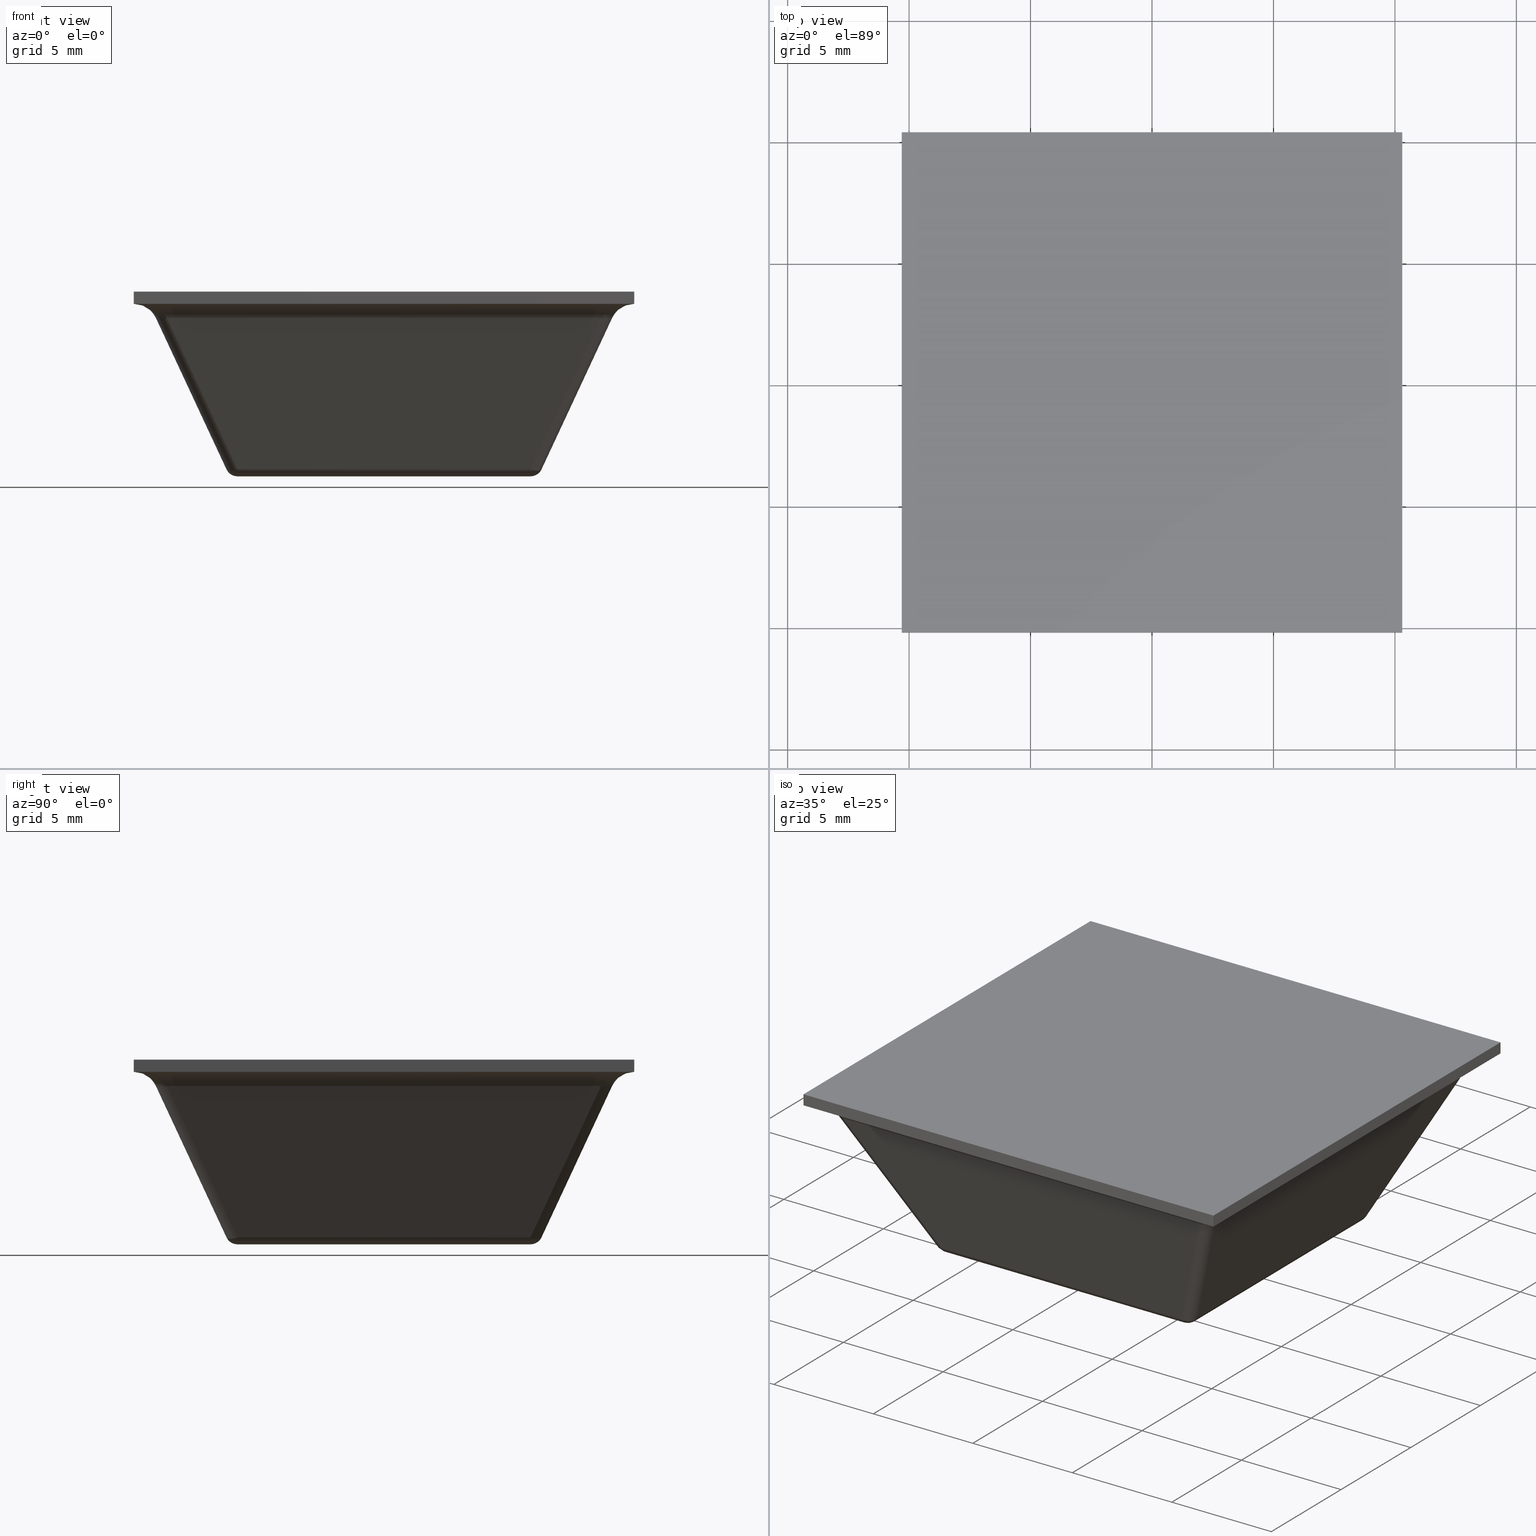
[diagram: canonical four-view strip — front | top / right | iso, engineering-drawing reading convention]
A machine part, canonical four-view strip (front | top / right | iso — engineering-drawing reading convention). The complete STEP part file that produces these views, byte-faithful:
ISO-10303-21;
HEADER;
/****************************************************************
 * Generated by software with PDE/Lib inside                    *
 * PDElib Version 4.4.1-0003, patched  Thursday August 19 11:58 *
 * International Technegroup Inc. (www.iti-oh.com)              *
 ****************************************************************/
FILE_DESCRIPTION((''),'2;1');
FILE_NAME('','2005-12-14T15:42:49',(''),(''),'','CADfix','');
FILE_SCHEMA(('AUTOMOTIVE_DESIGN'));
ENDSEC;
DATA;
#5=APPLICATION_CONTEXT('automotive design');
#6=APPLICATION_PROTOCOL_DEFINITION('Draft International Standard','automotive_design',1998,#5);
#7=PRODUCT_CONTEXT('None',#5,'mechanical');
#8=PRODUCT('rubber foot','','None',(#7));
#9=PRODUCT_RELATED_PRODUCT_CATEGORY('part','description',(#8));
#10=PRODUCT_DEFINITION_FORMATION('None','None',#8);
#11=PRODUCT_DEFINITION_CONTEXT('part definition',#5,'design');
#12=PRODUCT_DEFINITION('None','None',#10,#11);
#18=(NAMED_UNIT(*)PLANE_ANGLE_UNIT()SI_UNIT($,.RADIAN.));
#19=DIMENSIONAL_EXPONENTS(0.0,0.0,0.0,0.0,0.0,0.0,0.0);
#20=PLANE_ANGLE_MEASURE_WITH_UNIT(PLANE_ANGLE_MEASURE(0.017453292500000),#18);
#24=(CONVERSION_BASED_UNIT('DEGREE',#20)NAMED_UNIT(#19)PLANE_ANGLE_UNIT());
#28=(NAMED_UNIT(*)SI_UNIT($,.STERADIAN.)SOLID_ANGLE_UNIT());
#32=(LENGTH_UNIT()NAMED_UNIT(*)SI_UNIT(.MILLI.,.METRE.));
#34=UNCERTAINTY_MEASURE_WITH_UNIT(LENGTH_MEASURE(0.001000000000000),#32,'DISTANCE_ACCURACY_VALUE','');
#36=(GEOMETRIC_REPRESENTATION_CONTEXT(3)GLOBAL_UNCERTAINTY_ASSIGNED_CONTEXT((#34))GLOBAL_UNIT_ASSIGNED_CONTEXT((#24,#28,#32))REPRESENTATION_CONTEXT('None','None'));
#37=AXIS2_PLACEMENT_3D('',#38,#39,#40);
#38=CARTESIAN_POINT('',(0.0,0.0,0.0));
#39=DIRECTION('',(0.0,0.0,1.0));
#40=DIRECTION('',(1.0,0.0,0.0));
#41=ADVANCED_BREP_SHAPE_REPRESENTATION('',(#37,#1203),#36);
#42=PRODUCT_DEFINITION_SHAPE('','',#12);
#43=SHAPE_DEFINITION_REPRESENTATION(#42,#41);
#44=CARTESIAN_POINT('',(5.996269482723925,-6.005544566706119,0.001914263258448));
#45=CARTESIAN_POINT('',(6.092567517836257,-5.999565988669069,-0.004579188957124));
#46=CARTESIAN_POINT('',(6.390691726646398,-5.961825481680854,0.094552038508600));
#47=CARTESIAN_POINT('',(6.474167802716372,-5.923537855177108,0.294169996568950));
#48=CARTESIAN_POINT('',(6.002392777025314,-6.110580337493141,-0.003984500822956));
#49=CARTESIAN_POINT('',(6.103578696279659,-6.108630186754221,-0.011032979165015));
#50=CARTESIAN_POINT('',(6.416056060886284,-6.069072667391189,0.092870909862785));
#51=CARTESIAN_POINT('',(6.498408036753841,-6.010492529226550,0.300711534589791));
#52=CARTESIAN_POINT('',(6.002392777025314,-6.409194240097931,0.109701573345057));
#53=CARTESIAN_POINT('',(6.103578696279659,-6.419515116663930,0.107324829668182));
#54=CARTESIAN_POINT('',(6.416056060886284,-6.379957597300899,0.211228718695982));
#55=CARTESIAN_POINT('',(6.498408036753841,-6.266962309781905,0.398352810631311));
#56=CARTESIAN_POINT('',(5.980179272760333,-6.489791723331867,0.306851285621395));
#57=CARTESIAN_POINT('',(6.063822794760946,-6.501163698425042,0.311626657342303));
#58=CARTESIAN_POINT('',(6.324478035944461,-6.468166509130476,0.398298833704712));
#59=CARTESIAN_POINT('',(6.408996797294414,-6.357828846165383,0.530926460192636));
#67=(BOUNDED_SURFACE()B_SPLINE_SURFACE(2,2,((#44,#48,#52,#56),(#45,#49,#53,#57),(#46,#50,#54,#58),(#47,#51,#55,#59)),.UNSPECIFIED.,.F.,.F.,.U.)B_SPLINE_SURFACE_WITH_KNOTS((3,1,3),(3,1,3),(0.0,0.198291014408264,0.648858032309536),(0.0,0.214631105512660,0.650787210831185),.UNSPECIFIED.)GEOMETRIC_REPRESENTATION_ITEM()RATIONAL_B_SPLINE_SURFACE(((1.089238173844095,1.041093288684414,1.041093288684414,1.239908103179646),(1.048144885159681,1.0,1.0,1.198814814495232),(1.048144885159681,1.0,1.0,1.198814814495232),(1.260314713653803,1.212169828494122,1.212169828494122,1.410984642989354)))REPRESENTATION_ITEM('')SURFACE());
#68=CARTESIAN_POINT('',(6.484618936203209,-6.031465045455890,0.288690863187423));
#69=VERTEX_POINT('',#68);
#70=CARTESIAN_POINT('',(6.031465045455779,-6.484618936203209,0.288690863187423));
#71=VERTEX_POINT('',#70);
#72=CARTESIAN_POINT('',(6.484618936203209,-6.031465045455890,0.288690863187423));
#73=CARTESIAN_POINT('',(6.415947910680295,-6.415947910680401,0.141425378756760));
#74=CARTESIAN_POINT('',(6.031465045455779,-6.484618936203209,0.288690863187423));
#82=(BOUNDED_CURVE()B_SPLINE_CURVE(2,(#72,#73,#74),.UNSPECIFIED.,.F.,.U.)CURVE()GEOMETRIC_REPRESENTATION_ITEM()QUASI_UNIFORM_CURVE()RATIONAL_B_SPLINE_CURVE((1.0,0.767660799182123,1.0))REPRESENTATION_ITEM(''));
#83=EDGE_CURVE('',#69,#71,#82,.T.);
#84=ORIENTED_EDGE('',*,*,#83,.T.);
#85=CARTESIAN_POINT('',(6.031465045455790,-6.031465045455790,0.0));
#86=VERTEX_POINT('',#85);
#87=CARTESIAN_POINT('',(6.031465045455790,-6.031465045455790,0.0));
#88=CARTESIAN_POINT('',(6.031465045455790,-6.350000171250765,0.0));
#89=CARTESIAN_POINT('',(6.031465045455790,-6.484618936203209,0.288690863187423));
#97=(BOUNDED_CURVE()B_SPLINE_CURVE(2,(#87,#88,#89),.UNSPECIFIED.,.F.,.U.)CURVE()GEOMETRIC_REPRESENTATION_ITEM()QUASI_UNIFORM_CURVE()RATIONAL_B_SPLINE_CURVE((1.0,0.843391449335703,1.0))REPRESENTATION_ITEM(''));
#98=EDGE_CURVE('',#86,#71,#97,.T.);
#99=ORIENTED_EDGE('',*,*,#98,.F.);
#100=CARTESIAN_POINT('',(6.484618936203209,-6.031465045455890,0.288690863187423));
#101=CARTESIAN_POINT('',(6.350000171250765,-6.031465045455789,0.0));
#102=CARTESIAN_POINT('',(6.031465045455790,-6.031465045455790,0.0));
#110=(BOUNDED_CURVE()B_SPLINE_CURVE(2,(#100,#101,#102),.UNSPECIFIED.,.F.,.U.)CURVE()GEOMETRIC_REPRESENTATION_ITEM()QUASI_UNIFORM_CURVE()RATIONAL_B_SPLINE_CURVE((1.0,0.843391449335702,1.0))REPRESENTATION_ITEM(''));
#111=EDGE_CURVE('',#69,#86,#110,.T.);
#112=ORIENTED_EDGE('',*,*,#111,.F.);
#113=EDGE_LOOP('',(#84,#99,#112));
#114=FACE_OUTER_BOUND('',#113,.T.);
#115=ADVANCED_FACE('',(#114),#67,.T.);
#116=CARTESIAN_POINT('',(8.996691627693897,-9.466566985900785,6.684075282392934));
#117=CARTESIAN_POINT('',(5.942600196614458,-6.412475554821345,0.134555296801747));
#118=CARTESIAN_POINT('',(9.419675014113302,-9.404015585474179,6.516003081326400));
#119=CARTESIAN_POINT('',(6.365583583033866,-6.349924154394739,-0.033516904264785));
#120=CARTESIAN_POINT('',(9.468544639873960,-8.981687881144465,6.690149449325031));
#121=CARTESIAN_POINT('',(6.414453208794523,-5.927596450065025,0.140629463733846));
#129=(BOUNDED_SURFACE()B_SPLINE_SURFACE(1,2,((#116,#118,#120),(#117,#119,#121)),.UNSPECIFIED.,.F.,.F.,.U.)B_SPLINE_SURFACE_WITH_KNOTS((2,2),(3,3),(0.0,7.845454797552791),(0.0,0.989248217878956),.UNSPECIFIED.)GEOMETRIC_REPRESENTATION_ITEM()RATIONAL_B_SPLINE_SURFACE(((1.0,0.734242128086986,0.994285258528478),(1.0,0.734242128086986,0.994285258528478)))REPRESENTATION_ITEM('')SURFACE());
#130=CARTESIAN_POINT('',(9.391547127593508,-8.938393236846100,6.522618273625180));
#131=VERTEX_POINT('',#130);
#132=CARTESIAN_POINT('',(8.938393236846089,-9.391547127593508,6.522618273625180));
#133=VERTEX_POINT('',#132);
#134=CARTESIAN_POINT('',(9.391547127593514,-8.938393236846105,6.522618273625193));
#135=CARTESIAN_POINT('',(9.322876102070595,-9.322876102070593,6.375352789194563));
#136=CARTESIAN_POINT('',(8.938393236846100,-9.391547127593505,6.522618273625175));
#144=(BOUNDED_CURVE()B_SPLINE_CURVE(2,(#134,#135,#136),.UNSPECIFIED.,.F.,.U.)CURVE()GEOMETRIC_REPRESENTATION_ITEM()QUASI_UNIFORM_CURVE()RATIONAL_B_SPLINE_CURVE((1.0,0.767660799182148,1.0))REPRESENTATION_ITEM(''));
#145=EDGE_CURVE('',#131,#133,#144,.T.);
#146=ORIENTED_EDGE('',*,*,#145,.T.);
#147=CARTESIAN_POINT('',(6.031465045455779,-6.484618936203209,0.288690863187423));
#148=CARTESIAN_POINT('',(8.938393236846089,-9.391547127593508,6.522618273625180));
#149=QUASI_UNIFORM_CURVE('',1,(#147,#148),.UNSPECIFIED.,.F.,.U.);
#150=EDGE_CURVE('',#71,#133,#149,.T.);
#151=ORIENTED_EDGE('',*,*,#150,.F.);
#152=ORIENTED_EDGE('',*,*,#83,.F.);
#153=CARTESIAN_POINT('',(9.391547127593508,-8.938393236846100,6.522618273625180));
#154=CARTESIAN_POINT('',(6.484618936203209,-6.031465045455890,0.288690863187423));
#155=QUASI_UNIFORM_CURVE('',1,(#153,#154),.UNSPECIFIED.,.F.,.U.);
#156=EDGE_CURVE('',#131,#69,#155,.T.);
#157=ORIENTED_EDGE('',*,*,#156,.F.);
#158=EDGE_LOOP('',(#146,#151,#152,#157));
#159=FACE_OUTER_BOUND('',#158,.T.);
#160=ADVANCED_FACE('',(#159),#129,.T.);
#161=CARTESIAN_POINT('',(9.391547127593498,-8.938393236846085,6.522618273625191));
#162=CARTESIAN_POINT('',(9.431494190975366,-8.998313831926295,6.608285024568768));
#163=CARTESIAN_POINT('',(9.483681436343781,-9.076594699971480,6.688267893788268));
#164=CARTESIAN_POINT('',(9.608348779843993,-9.263595715221854,6.830423751200287));
#165=CARTESIAN_POINT('',(9.680822206576167,-9.372305855320173,6.892595863452938));
#166=CARTESIAN_POINT('',(9.920021505661367,-9.731104803947702,7.044982621101283));
#167=CARTESIAN_POINT('',(10.108630607140890,-10.014018456166649,7.100000000000000));
#168=CARTESIAN_POINT('',(10.297854909088320,-10.297854909088320,7.100000000000002));
#169=CARTESIAN_POINT('',(9.322876102070586,-9.322876102070586,6.375352789194572));
#170=CARTESIAN_POINT('',(9.342173457417509,-9.342173457417509,6.452974475952404));
#171=CARTESIAN_POINT('',(9.377447899508841,-9.377447899508841,6.542361407575299));
#172=CARTESIAN_POINT('',(9.486768763177249,-9.486768763177249,6.716558671589717));
#173=CARTESIAN_POINT('',(9.560446616874357,-9.560446616874357,6.801067011559352));
#174=CARTESIAN_POINT('',(9.825778169636791,-9.825778169636791,7.014625284663367));
#175=CARTESIAN_POINT('',(10.061203890053322,-10.061203890053322,7.099999999995125));
#176=CARTESIAN_POINT('',(10.297854909088320,-10.297854909088320,7.100000000000002));
#177=CARTESIAN_POINT('',(8.938393236846085,-9.391547127593498,6.522618273625191));
#178=CARTESIAN_POINT('',(8.998313831926295,-9.431494190975366,6.608285024568768));
#179=CARTESIAN_POINT('',(9.076594699971480,-9.483681436343781,6.688267893788268));
#180=CARTESIAN_POINT('',(9.263595715221854,-9.608348779843993,6.830423751200287));
#181=CARTESIAN_POINT('',(9.372305855320173,-9.680822206576167,6.892595863452938));
#182=CARTESIAN_POINT('',(9.731104803947702,-9.920021505661367,7.044982621101283));
#183=CARTESIAN_POINT('',(10.014018456166649,-10.108630607140899,7.100000000000000));
#184=CARTESIAN_POINT('',(10.297854909088320,-10.297854909088320,7.100000000000002));
#192=(BOUNDED_SURFACE()B_SPLINE_SURFACE(3,2,((#161,#169,#177),(#162,#170,#178),(#163,#171,#179),(#164,#172,#180),(#165,#173,#181),(#166,#174,#182),(#167,#175,#183),(#168,#176,#184)),.UNSPECIFIED.,.F.,.F.,.U.)B_SPLINE_SURFACE_WITH_KNOTS((4,2,2,4),(3,3),(6.719517633291250,7.003133633462058,7.286749633632867,7.853981633974483),(0.0,1.0),.UNSPECIFIED.)GEOMETRIC_REPRESENTATION_ITEM()RATIONAL_B_SPLINE_SURFACE(((1.0,0.767660799182144,1.0),(1.0,0.791268644861793,1.0),(1.0,0.819310037563901,1.0),(1.0,0.874642094959707,1.0),(1.0,0.901859323982885,1.0),(1.0,0.971329300386949,1.0),(1.0,1.000705924827623,1.0),(1.0,1.0,1.0)))REPRESENTATION_ITEM('')SURFACE());
#193=CARTESIAN_POINT('',(10.297854909088340,-10.297854909088340,7.100000000000001));
#194=VERTEX_POINT('',#193);
#195=CARTESIAN_POINT('',(10.297854909088329,-10.297854909088340,7.100000000000001));
#196=CARTESIAN_POINT('',(9.660784657498398,-9.342249531703446,7.100000000000001));
#197=CARTESIAN_POINT('',(9.391547127593499,-8.938393236846105,6.522618273625191));
#205=(BOUNDED_CURVE()B_SPLINE_CURVE(2,(#195,#196,#197),.UNSPECIFIED.,.F.,.U.)CURVE()GEOMETRIC_REPRESENTATION_ITEM()QUASI_UNIFORM_CURVE()RATIONAL_B_SPLINE_CURVE((1.0,0.843391449335735,1.0))REPRESENTATION_ITEM(''));
#206=EDGE_CURVE('',#194,#131,#205,.T.);
#207=ORIENTED_EDGE('',*,*,#206,.F.);
#208=CARTESIAN_POINT('',(8.938393236846093,-9.391547127593501,6.522618273625196));
#209=CARTESIAN_POINT('',(9.342249531703443,-9.660784657498404,7.100000000000001));
#210=CARTESIAN_POINT('',(10.297854909088340,-10.297854909088329,7.100000000000001));
#218=(BOUNDED_CURVE()B_SPLINE_CURVE(2,(#208,#209,#210),.UNSPECIFIED.,.F.,.U.)CURVE()GEOMETRIC_REPRESENTATION_ITEM()QUASI_UNIFORM_CURVE()RATIONAL_B_SPLINE_CURVE((1.0,0.843391449335736,1.0))REPRESENTATION_ITEM(''));
#219=EDGE_CURVE('',#133,#194,#218,.T.);
#220=ORIENTED_EDGE('',*,*,#219,.F.);
#221=ORIENTED_EDGE('',*,*,#145,.F.);
#222=EDGE_LOOP('',(#207,#220,#221));
#223=FACE_OUTER_BOUND('',#222,.T.);
#224=ADVANCED_FACE('',(#223),#192,.T.);
#225=CARTESIAN_POINT('',(5.979771742497417,6.489611345427118,0.306532250098791));
#226=CARTESIAN_POINT('',(6.104913527955021,6.508496046489298,0.317815596756849));
#227=CARTESIAN_POINT('',(6.363223597986297,6.437328158908335,0.441391629772017));
#228=CARTESIAN_POINT('',(6.428552450550005,6.330570420988108,0.553456216132630));
#229=CARTESIAN_POINT('',(6.003209976368464,6.426844761680123,0.151633679948807));
#230=CARTESIAN_POINT('',(6.147018930141467,6.443043986980738,0.151569872509884));
#231=CARTESIAN_POINT('',(6.439845641629646,6.362366301897187,0.291658733010772));
#232=CARTESIAN_POINT('',(6.503090066652169,6.252648116982631,0.435771706955867));
#233=CARTESIAN_POINT('',(6.003209976368464,6.154703677114867,-0.005093362018334));
#234=CARTESIAN_POINT('',(6.147018930141467,6.148318164801390,-0.018163802121765));
#235=CARTESIAN_POINT('',(6.439845641629646,6.067640479717839,0.121925058379124));
#236=CARTESIAN_POINT('',(6.503090066652169,5.995263839206325,0.287543163775146));
#237=CARTESIAN_POINT('',(5.985333849786838,6.010734180685159,0.002564432280909));
#238=CARTESIAN_POINT('',(6.114836541181076,5.994052511955813,-0.008750175967944));
#239=CARTESIAN_POINT('',(6.381281175232886,5.920643442923182,0.118717448079055));
#240=CARTESIAN_POINT('',(6.446321622570888,5.871169255353566,0.271528382288195));
#248=(BOUNDED_SURFACE()B_SPLINE_SURFACE(2,2,((#225,#229,#233,#237),(#226,#230,#234,#238),(#227,#231,#235,#239),(#228,#232,#236,#240)),.UNSPECIFIED.,.F.,.F.,.U.)B_SPLINE_SURFACE_WITH_KNOTS((3,1,3),(3,1,3),(0.0,0.275540843955162,0.639858857975324),(0.0,0.349638390442770,0.650610686480386),.UNSPECIFIED.)GEOMETRIC_REPRESENTATION_ITEM()RATIONAL_B_SPLINE_SURFACE(((1.216613916462104,1.082989077706410,1.082989077706410,1.182004310384124),(1.133624838755694,1.0,1.0,1.099015232677714),(1.133624838755694,1.0,1.0,1.099015232677714),(1.278705745505941,1.145080906750247,1.145080906750247,1.244096139427961)))REPRESENTATION_ITEM('')SURFACE());
#249=CARTESIAN_POINT('',(6.031465045455790,6.031465045455790,0.0));
#250=VERTEX_POINT('',#249);
#251=CARTESIAN_POINT('',(6.484618936203209,6.031465045455779,0.288690863187423));
#252=VERTEX_POINT('',#251);
#253=CARTESIAN_POINT('',(6.031465045455790,6.031465045455790,0.0));
#254=CARTESIAN_POINT('',(6.350000171250765,6.031465045455789,0.0));
#255=CARTESIAN_POINT('',(6.484618936203209,6.031465045455790,0.288690863187423));
#263=(BOUNDED_CURVE()B_SPLINE_CURVE(2,(#253,#254,#255),.UNSPECIFIED.,.F.,.U.)CURVE()GEOMETRIC_REPRESENTATION_ITEM()QUASI_UNIFORM_CURVE()RATIONAL_B_SPLINE_CURVE((1.0,0.843391449335702,1.0))REPRESENTATION_ITEM(''));
#264=EDGE_CURVE('',#250,#252,#263,.T.);
#265=ORIENTED_EDGE('',*,*,#264,.F.);
#266=CARTESIAN_POINT('',(6.031465045455890,6.484618936203209,0.288690863187423));
#267=VERTEX_POINT('',#266);
#268=CARTESIAN_POINT('',(6.031465045455890,6.484618936203209,0.288690863187423));
#269=CARTESIAN_POINT('',(6.031465045455789,6.350000171250765,0.0));
#270=CARTESIAN_POINT('',(6.031465045455790,6.031465045455790,0.0));
#278=(BOUNDED_CURVE()B_SPLINE_CURVE(2,(#268,#269,#270),.UNSPECIFIED.,.F.,.U.)CURVE()GEOMETRIC_REPRESENTATION_ITEM()QUASI_UNIFORM_CURVE()RATIONAL_B_SPLINE_CURVE((1.0,0.843391449335702,1.0))REPRESENTATION_ITEM(''));
#279=EDGE_CURVE('',#267,#250,#278,.T.);
#280=ORIENTED_EDGE('',*,*,#279,.F.);
#281=CARTESIAN_POINT('',(6.031465045455890,6.484618936203209,0.288690863187423));
#282=CARTESIAN_POINT('',(6.415947910680401,6.415947910680295,0.141425378756760));
#283=CARTESIAN_POINT('',(6.484618936203209,6.031465045455779,0.288690863187423));
#291=(BOUNDED_CURVE()B_SPLINE_CURVE(2,(#281,#282,#283),.UNSPECIFIED.,.F.,.U.)CURVE()GEOMETRIC_REPRESENTATION_ITEM()QUASI_UNIFORM_CURVE()RATIONAL_B_SPLINE_CURVE((1.0,0.767660799182123,1.0))REPRESENTATION_ITEM(''));
#292=EDGE_CURVE('',#267,#252,#291,.T.);
#293=ORIENTED_EDGE('',*,*,#292,.T.);
#294=EDGE_LOOP('',(#265,#280,#293));
#295=FACE_OUTER_BOUND('',#294,.T.);
#296=ADVANCED_FACE('',(#295),#248,.T.);
#297=CARTESIAN_POINT('',(9.466566985900785,8.996691627693897,6.684075282392934));
#298=CARTESIAN_POINT('',(6.412475554821346,5.942600196614457,0.134555296801747));
#299=CARTESIAN_POINT('',(9.404015585474177,9.419675014113311,6.516003081326400));
#300=CARTESIAN_POINT('',(6.349924154394739,6.365583583033868,-0.033516904264786));
#301=CARTESIAN_POINT('',(8.981687881144458,9.468544639873970,6.690149449325035));
#302=CARTESIAN_POINT('',(5.927596450065020,6.414453208794525,0.140629463733846));
#310=(BOUNDED_SURFACE()B_SPLINE_SURFACE(1,2,((#297,#299,#301),(#298,#300,#302)),.UNSPECIFIED.,.F.,.F.,.U.)B_SPLINE_SURFACE_WITH_KNOTS((2,2),(3,3),(0.0,7.845454797552792),(0.0,0.989248217878956),.UNSPECIFIED.)GEOMETRIC_REPRESENTATION_ITEM()RATIONAL_B_SPLINE_SURFACE(((1.0,0.734242128086986,0.994285258528478),(1.0,0.734242128086986,0.994285258528478)))REPRESENTATION_ITEM('')SURFACE());
#311=CARTESIAN_POINT('',(8.938393236846100,9.391547127593508,6.522618273625180));
#312=VERTEX_POINT('',#311);
#313=CARTESIAN_POINT('',(9.391547127593508,8.938393236846089,6.522618273625180));
#314=VERTEX_POINT('',#313);
#315=CARTESIAN_POINT('',(8.938393236846105,9.391547127593514,6.522618273625193));
#316=CARTESIAN_POINT('',(9.322876102070593,9.322876102070595,6.375352789194563));
#317=CARTESIAN_POINT('',(9.391547127593505,8.938393236846100,6.522618273625175));
#325=(BOUNDED_CURVE()B_SPLINE_CURVE(2,(#315,#316,#317),.UNSPECIFIED.,.F.,.U.)CURVE()GEOMETRIC_REPRESENTATION_ITEM()QUASI_UNIFORM_CURVE()RATIONAL_B_SPLINE_CURVE((1.0,0.767660799182148,1.0))REPRESENTATION_ITEM(''));
#326=EDGE_CURVE('',#312,#314,#325,.T.);
#327=ORIENTED_EDGE('',*,*,#326,.T.);
#328=CARTESIAN_POINT('',(6.484618936203209,6.031465045455779,0.288690863187423));
#329=CARTESIAN_POINT('',(9.391547127593508,8.938393236846089,6.522618273625180));
#330=QUASI_UNIFORM_CURVE('',1,(#328,#329),.UNSPECIFIED.,.F.,.U.);
#331=EDGE_CURVE('',#252,#314,#330,.T.);
#332=ORIENTED_EDGE('',*,*,#331,.F.);
#333=ORIENTED_EDGE('',*,*,#292,.F.);
#334=CARTESIAN_POINT('',(8.938393236846100,9.391547127593508,6.522618273625180));
#335=CARTESIAN_POINT('',(6.031465045455890,6.484618936203209,0.288690863187423));
#336=QUASI_UNIFORM_CURVE('',1,(#334,#335),.UNSPECIFIED.,.F.,.U.);
#337=EDGE_CURVE('',#312,#267,#336,.T.);
#338=ORIENTED_EDGE('',*,*,#337,.F.);
#339=EDGE_LOOP('',(#327,#332,#333,#338));
#340=FACE_OUTER_BOUND('',#339,.T.);
#341=ADVANCED_FACE('',(#340),#310,.T.);
#342=CARTESIAN_POINT('',(8.938393236846085,9.391547127593498,6.522618273625191));
#343=CARTESIAN_POINT('',(8.998313831926295,9.431494190975366,6.608285024568768));
#344=CARTESIAN_POINT('',(9.076594699971480,9.483681436343781,6.688267893788268));
#345=CARTESIAN_POINT('',(9.263595715221854,9.608348779843993,6.830423751200287));
#346=CARTESIAN_POINT('',(9.372305855320173,9.680822206576167,6.892595863452938));
#347=CARTESIAN_POINT('',(9.731104803947702,9.920021505661367,7.044982621101283));
#348=CARTESIAN_POINT('',(10.014018456166649,10.108630607140899,7.100000000000000));
#349=CARTESIAN_POINT('',(10.297854909088320,10.297854909088320,7.100000000000002));
#350=CARTESIAN_POINT('',(9.322876102070586,9.322876102070586,6.375352789194572));
#351=CARTESIAN_POINT('',(9.342173457417509,9.342173457417509,6.452974475952404));
#352=CARTESIAN_POINT('',(9.377447899508841,9.377447899508841,6.542361407575299));
#353=CARTESIAN_POINT('',(9.486768763177249,9.486768763177249,6.716558671589717));
#354=CARTESIAN_POINT('',(9.560446616874357,9.560446616874357,6.801067011559352));
#355=CARTESIAN_POINT('',(9.825778169636791,9.825778169636791,7.014625284663367));
#356=CARTESIAN_POINT('',(10.061203890053322,10.061203890053322,7.099999999995125));
#357=CARTESIAN_POINT('',(10.297854909088320,10.297854909088320,7.100000000000002));
#358=CARTESIAN_POINT('',(9.391547127593498,8.938393236846085,6.522618273625191));
#359=CARTESIAN_POINT('',(9.431494190975366,8.998313831926295,6.608285024568768));
#360=CARTESIAN_POINT('',(9.483681436343781,9.076594699971480,6.688267893788268));
#361=CARTESIAN_POINT('',(9.608348779843993,9.263595715221854,6.830423751200287));
#362=CARTESIAN_POINT('',(9.680822206576167,9.372305855320173,6.892595863452938));
#363=CARTESIAN_POINT('',(9.920021505661367,9.731104803947702,7.044982621101283));
#364=CARTESIAN_POINT('',(10.108630607140890,10.014018456166649,7.100000000000000));
#365=CARTESIAN_POINT('',(10.297854909088320,10.297854909088320,7.100000000000002));
#373=(BOUNDED_SURFACE()B_SPLINE_SURFACE(3,2,((#342,#350,#358),(#343,#351,#359),(#344,#352,#360),(#345,#353,#361),(#346,#354,#362),(#347,#355,#363),(#348,#356,#364),(#349,#357,#365)),.UNSPECIFIED.,.F.,.F.,.U.)B_SPLINE_SURFACE_WITH_KNOTS((4,2,2,4),(3,3),(6.719517633291250,7.003133633462058,7.286749633632867,7.853981633974483),(0.0,1.0),.UNSPECIFIED.)GEOMETRIC_REPRESENTATION_ITEM()RATIONAL_B_SPLINE_SURFACE(((1.0,0.767660799182144,1.0),(1.0,0.791268644861793,1.0),(1.0,0.819310037563901,1.0),(1.0,0.874642094959707,1.0),(1.0,0.901859323982885,1.0),(1.0,0.971329300386949,1.0),(1.0,1.000705924827623,1.0),(1.0,1.0,1.0)))REPRESENTATION_ITEM('')SURFACE());
#374=CARTESIAN_POINT('',(10.297854909088340,10.297854909088340,7.100000000000001));
#375=VERTEX_POINT('',#374);
#376=CARTESIAN_POINT('',(10.297854909088340,10.297854909088329,7.100000000000001));
#377=CARTESIAN_POINT('',(9.342249531703446,9.660784657498398,7.100000000000001));
#378=CARTESIAN_POINT('',(8.938393236846105,9.391547127593499,6.522618273625191));
#386=(BOUNDED_CURVE()B_SPLINE_CURVE(2,(#376,#377,#378),.UNSPECIFIED.,.F.,.U.)CURVE()GEOMETRIC_REPRESENTATION_ITEM()QUASI_UNIFORM_CURVE()RATIONAL_B_SPLINE_CURVE((1.0,0.843391449335735,1.0))REPRESENTATION_ITEM(''));
#387=EDGE_CURVE('',#375,#312,#386,.T.);
#388=ORIENTED_EDGE('',*,*,#387,.F.);
#389=CARTESIAN_POINT('',(9.391547127593501,8.938393236846093,6.522618273625196));
#390=CARTESIAN_POINT('',(9.660784657498404,9.342249531703443,7.100000000000001));
#391=CARTESIAN_POINT('',(10.297854909088329,10.297854909088340,7.100000000000001));
#399=(BOUNDED_CURVE()B_SPLINE_CURVE(2,(#389,#390,#391),.UNSPECIFIED.,.F.,.U.)CURVE()GEOMETRIC_REPRESENTATION_ITEM()QUASI_UNIFORM_CURVE()RATIONAL_B_SPLINE_CURVE((1.0,0.843391449335736,1.0))REPRESENTATION_ITEM(''));
#400=EDGE_CURVE('',#314,#375,#399,.T.);
#401=ORIENTED_EDGE('',*,*,#400,.F.);
#402=ORIENTED_EDGE('',*,*,#326,.F.);
#403=EDGE_LOOP('',(#388,#401,#402));
#404=FACE_OUTER_BOUND('',#403,.T.);
#405=ADVANCED_FACE('',(#404),#373,.T.);
#406=CARTESIAN_POINT('',(-9.391547127593492,8.938393236846080,6.522618273625186));
#407=CARTESIAN_POINT('',(-9.431494190975297,8.998313831926595,6.608285024568628));
#408=CARTESIAN_POINT('',(-9.483681436343741,9.076594699971473,6.688267893788221));
#409=CARTESIAN_POINT('',(-9.608348779844025,9.263595715221847,6.830423751200326));
#410=CARTESIAN_POINT('',(-9.680822206576162,9.372305855320164,6.892595863452933));
#411=CARTESIAN_POINT('',(-9.920021505661364,9.731104803947694,7.044982621101281));
#412=CARTESIAN_POINT('',(-10.108630607140579,10.014018456166870,7.100000000000000));
#413=CARTESIAN_POINT('',(-10.297854909088329,10.297854909088320,7.100000000000002));
#414=CARTESIAN_POINT('',(-9.322876102070582,9.322876102070582,6.375352789194564));
#415=CARTESIAN_POINT('',(-9.342173457418479,9.342173457418479,6.452974475952030));
#416=CARTESIAN_POINT('',(-9.377447899508688,9.377447899508688,6.542361407575219));
#417=CARTESIAN_POINT('',(-9.486768763177389,9.486768763177389,6.716558671589787));
#418=CARTESIAN_POINT('',(-9.560446616874192,9.560446616874192,6.801067011559588));
#419=CARTESIAN_POINT('',(-9.825778169637108,9.825778169637108,7.014625284662880));
#420=CARTESIAN_POINT('',(-10.061203890053076,10.061203890053076,7.099999999995125));
#421=CARTESIAN_POINT('',(-10.297854909088320,10.297854909088320,7.100000000000002));
#422=CARTESIAN_POINT('',(-8.938393236846080,9.391547127593492,6.522618273625186));
#423=CARTESIAN_POINT('',(-8.998313831926598,9.431494190975300,6.608285024568635));
#424=CARTESIAN_POINT('',(-9.076594699971473,9.483681436343741,6.688267893788221));
#425=CARTESIAN_POINT('',(-9.263595715221847,9.608348779844025,6.830423751200326));
#426=CARTESIAN_POINT('',(-9.372305855320164,9.680822206576162,6.892595863452933));
#427=CARTESIAN_POINT('',(-9.731104803947694,9.920021505661364,7.044982621101281));
#428=CARTESIAN_POINT('',(-10.014018456166861,10.108630607140570,7.100000000000000));
#429=CARTESIAN_POINT('',(-10.297854909088320,10.297854909088329,7.100000000000002));
#437=(BOUNDED_SURFACE()B_SPLINE_SURFACE(3,2,((#406,#414,#422),(#407,#415,#423),(#408,#416,#424),(#409,#417,#425),(#410,#418,#426),(#411,#419,#427),(#412,#420,#428),(#413,#421,#429)),.UNSPECIFIED.,.F.,.F.,.U.)B_SPLINE_SURFACE_WITH_KNOTS((4,2,2,4),(3,3),(3.577924979701451,3.861540979872261,4.145156980043071,4.712388980384690),(0.0,1.0),.UNSPECIFIED.)GEOMETRIC_REPRESENTATION_ITEM()RATIONAL_B_SPLINE_SURFACE(((1.0,0.767660799182140,1.0),(1.0,0.791268644861786,1.0),(1.0,0.819310037563909,1.0),(1.0,0.874642094959696,1.0),(1.0,0.901859323982863,1.0),(1.0,0.971329300386989,1.0),(1.0,1.000705924827593,1.0),(1.0,1.0,1.0)))REPRESENTATION_ITEM('')SURFACE());
#438=CARTESIAN_POINT('',(-8.938393236846070,9.391547127593508,6.522618273625180));
#439=VERTEX_POINT('',#438);
#440=CARTESIAN_POINT('',(-9.391547127593508,8.938393236846411,6.522618273625180));
#441=VERTEX_POINT('',#440);
#442=CARTESIAN_POINT('',(-8.938393236846070,9.391547127593507,6.522618273625183));
#443=CARTESIAN_POINT('',(-9.322876102070540,9.322876102070831,6.375352789195053));
#444=CARTESIAN_POINT('',(-9.391547127593508,8.938393236846411,6.522618273625180));
#452=(BOUNDED_CURVE()B_SPLINE_CURVE(2,(#442,#443,#444),.UNSPECIFIED.,.F.,.U.)CURVE()GEOMETRIC_REPRESENTATION_ITEM()QUASI_UNIFORM_CURVE()RATIONAL_B_SPLINE_CURVE((1.0,0.767660799182322,1.0))REPRESENTATION_ITEM(''));
#453=EDGE_CURVE('',#439,#441,#452,.T.);
#454=ORIENTED_EDGE('',*,*,#453,.T.);
#455=CARTESIAN_POINT('',(-10.297854909088340,10.297854909088340,7.100000000000001));
#456=VERTEX_POINT('',#455);
#457=CARTESIAN_POINT('',(-10.297854909088329,10.297854909088340,7.100000000000001));
#458=CARTESIAN_POINT('',(-9.660784657498638,9.342249531703805,7.100000000000001));
#459=CARTESIAN_POINT('',(-9.391547127593508,8.938393236846411,6.522618273625180));
#467=(BOUNDED_CURVE()B_SPLINE_CURVE(2,(#457,#458,#459),.UNSPECIFIED.,.F.,.U.)CURVE()GEOMETRIC_REPRESENTATION_ITEM()QUASI_UNIFORM_CURVE()RATIONAL_B_SPLINE_CURVE((1.0,0.843391449335826,1.0))REPRESENTATION_ITEM(''));
#468=EDGE_CURVE('',#456,#441,#467,.T.);
#469=ORIENTED_EDGE('',*,*,#468,.F.);
#470=CARTESIAN_POINT('',(-8.938393236846080,9.391547127593494,6.522618273625180));
#471=CARTESIAN_POINT('',(-9.342249531703425,9.660784657498391,7.100000000000001));
#472=CARTESIAN_POINT('',(-10.297854909088340,10.297854909088329,7.100000000000001));
#480=(BOUNDED_CURVE()B_SPLINE_CURVE(2,(#470,#471,#472),.UNSPECIFIED.,.F.,.U.)CURVE()GEOMETRIC_REPRESENTATION_ITEM()QUASI_UNIFORM_CURVE()RATIONAL_B_SPLINE_CURVE((1.0,0.843391449335731,1.0))REPRESENTATION_ITEM(''));
#481=EDGE_CURVE('',#439,#456,#480,.T.);
#482=ORIENTED_EDGE('',*,*,#481,.F.);
#483=EDGE_LOOP('',(#454,#469,#482));
#484=FACE_OUTER_BOUND('',#483,.T.);
#485=ADVANCED_FACE('',(#484),#437,.T.);
#486=CARTESIAN_POINT('',(-8.996691627693746,9.466566985900926,6.684075282393220));
#487=CARTESIAN_POINT('',(-5.942600196614209,6.412475554821388,0.134555296801823));
#488=CARTESIAN_POINT('',(-9.419675014113150,9.404015585474546,6.516003081326581));
#489=CARTESIAN_POINT('',(-6.365583583033612,6.349924154395009,-0.033516904264815));
#490=CARTESIAN_POINT('',(-9.468544639874038,8.981687881144818,6.690149449325113));
#491=CARTESIAN_POINT('',(-6.414453208794501,5.927596450065278,0.140629463733716));
#499=(BOUNDED_SURFACE()B_SPLINE_SURFACE(1,2,((#486,#488,#490),(#487,#489,#491)),.UNSPECIFIED.,.F.,.F.,.U.)B_SPLINE_SURFACE_WITH_KNOTS((2,2),(3,3),(0.0,7.845454797553043),(0.0,0.989248217878956),.UNSPECIFIED.)GEOMETRIC_REPRESENTATION_ITEM()RATIONAL_B_SPLINE_SURFACE(((1.0,0.734242128086986,0.994285258528478),(1.0,0.734242128086986,0.994285258528478)))REPRESENTATION_ITEM('')SURFACE());
#500=CARTESIAN_POINT('',(-6.031465045455790,6.484618936203209,0.288690863187423));
#501=VERTEX_POINT('',#500);
#502=CARTESIAN_POINT('',(-6.484618936203209,6.031465045455790,0.288690863187423));
#503=VERTEX_POINT('',#502);
#504=CARTESIAN_POINT('',(-6.031465045455792,6.484618936203211,0.288690863187428));
#505=CARTESIAN_POINT('',(-6.415947910680279,6.415947910680293,0.141425378756785));
#506=CARTESIAN_POINT('',(-6.484618936203209,6.031465045455790,0.288690863187423));
#514=(BOUNDED_CURVE()B_SPLINE_CURVE(2,(#504,#505,#506),.UNSPECIFIED.,.F.,.U.)CURVE()GEOMETRIC_REPRESENTATION_ITEM()QUASI_UNIFORM_CURVE()RATIONAL_B_SPLINE_CURVE((1.0,0.767660799182145,1.0))REPRESENTATION_ITEM(''));
#515=EDGE_CURVE('',#501,#503,#514,.T.);
#516=ORIENTED_EDGE('',*,*,#515,.T.);
#517=CARTESIAN_POINT('',(-9.391547127593508,8.938393236846411,6.522618273625180));
#518=CARTESIAN_POINT('',(-6.484618936203209,6.031465045455790,0.288690863187423));
#519=QUASI_UNIFORM_CURVE('',1,(#517,#518),.UNSPECIFIED.,.F.,.U.);
#520=EDGE_CURVE('',#441,#503,#519,.T.);
#521=ORIENTED_EDGE('',*,*,#520,.F.);
#522=ORIENTED_EDGE('',*,*,#453,.F.);
#523=CARTESIAN_POINT('',(-6.031465045455790,6.484618936203209,0.288690863187423));
#524=CARTESIAN_POINT('',(-8.938393236846070,9.391547127593508,6.522618273625180));
#525=QUASI_UNIFORM_CURVE('',1,(#523,#524),.UNSPECIFIED.,.F.,.U.);
#526=EDGE_CURVE('',#501,#439,#525,.T.);
#527=ORIENTED_EDGE('',*,*,#526,.F.);
#528=EDGE_LOOP('',(#516,#521,#522,#527));
#529=FACE_OUTER_BOUND('',#528,.T.);
#530=ADVANCED_FACE('',(#529),#499,.T.);
#531=CARTESIAN_POINT('',(-6.443409416231572,6.310671927139144,0.548428840651026));
#532=CARTESIAN_POINT('',(-6.373245327280641,6.434981836984514,0.428572970919534));
#533=CARTESIAN_POINT('',(-6.100236501329850,6.506229802672356,0.316736212923854));
#534=CARTESIAN_POINT('',(-5.984420954124015,6.490912067118159,0.308439858643963));
#535=CARTESIAN_POINT('',(-6.504142580831664,6.239954351840023,0.439529855541416));
#536=CARTESIAN_POINT('',(-6.436508842938403,6.366129724340077,0.287395412464149));
#537=CARTESIAN_POINT('',(-6.132670797290976,6.445423287746158,0.162929612273951));
#538=CARTESIAN_POINT('',(-6.002545218516091,6.432355220798970,0.163543284689747));
#539=CARTESIAN_POINT('',(-6.504142580831664,5.998158271363482,0.285488562195694));
#540=CARTESIAN_POINT('',(-6.436508842938403,6.082715061889909,0.106840123598743));
#541=CARTESIAN_POINT('',(-6.132670797290976,6.162008625295989,-0.017625676591456));
#542=CARTESIAN_POINT('',(-6.002545218516091,6.166975253728650,-0.005522621072622));
#543=CARTESIAN_POINT('',(-6.443409230480491,5.869575565237665,0.267419294396459));
#544=CARTESIAN_POINT('',(-6.373245136673538,5.925666348795157,0.104103089219924));
#545=CARTESIAN_POINT('',(-6.100236403608326,5.996914290242358,-0.007733630725624));
#546=CARTESIAN_POINT('',(-5.984420899162420,6.010906907353581,0.002642772991787));
#554=(BOUNDED_SURFACE()B_SPLINE_SURFACE(2,2,((#531,#535,#539,#543),(#532,#536,#540,#544),(#533,#537,#541,#545),(#534,#538,#542,#546)),.UNSPECIFIED.,.F.,.F.,.U.)B_SPLINE_SURFACE_WITH_KNOTS((3,1,3),(3,1,3),(0.0,0.396927420410892,0.646336596826276),(0.0,0.321502987806526,0.643006514634473),.UNSPECIFIED.)GEOMETRIC_REPRESENTATION_ITEM()RATIONAL_B_SPLINE_SURFACE(((1.285046543252591,1.172122649348174,1.172122649348174,1.285046921901942),(1.112923893904417,1.0,1.0,1.112924272553768),(1.112923893904417,1.0,1.0,1.112924272553768),(1.180881907385779,1.067958013481362,1.067958013481362,1.180882286035130)))REPRESENTATION_ITEM('')SURFACE());
#555=CARTESIAN_POINT('',(-6.031465045455790,6.031465045455790,0.0));
#556=VERTEX_POINT('',#555);
#557=CARTESIAN_POINT('',(-6.031465045455790,6.031465045455790,0.0));
#558=CARTESIAN_POINT('',(-6.031465045455789,6.350000171250765,0.0));
#559=CARTESIAN_POINT('',(-6.031465045455790,6.484618936203209,0.288690863187423));
#567=(BOUNDED_CURVE()B_SPLINE_CURVE(2,(#557,#558,#559),.UNSPECIFIED.,.F.,.U.)CURVE()GEOMETRIC_REPRESENTATION_ITEM()QUASI_UNIFORM_CURVE()RATIONAL_B_SPLINE_CURVE((1.0,0.843391449335702,1.0))REPRESENTATION_ITEM(''));
#568=EDGE_CURVE('',#556,#501,#567,.T.);
#569=ORIENTED_EDGE('',*,*,#568,.F.);
#570=CARTESIAN_POINT('',(-6.484618936203209,6.031465045455790,0.288690863187423));
#571=CARTESIAN_POINT('',(-6.350000171250765,6.031465045455789,0.0));
#572=CARTESIAN_POINT('',(-6.031465045455790,6.031465045455790,0.0));
#580=(BOUNDED_CURVE()B_SPLINE_CURVE(2,(#570,#571,#572),.UNSPECIFIED.,.F.,.U.)CURVE()GEOMETRIC_REPRESENTATION_ITEM()QUASI_UNIFORM_CURVE()RATIONAL_B_SPLINE_CURVE((1.0,0.843391449335702,1.0))REPRESENTATION_ITEM(''));
#581=EDGE_CURVE('',#503,#556,#580,.T.);
#582=ORIENTED_EDGE('',*,*,#581,.F.);
#583=ORIENTED_EDGE('',*,*,#515,.F.);
#584=EDGE_LOOP('',(#569,#582,#583));
#585=FACE_OUTER_BOUND('',#584,.T.);
#586=ADVANCED_FACE('',(#585),#554,.T.);
#587=CARTESIAN_POINT('',(-6.474167819699521,-5.923537887692579,0.294170016047086));
#588=CARTESIAN_POINT('',(-6.390691784812169,-5.961825459338190,0.094552155598420));
#589=CARTESIAN_POINT('',(-6.092567626027758,-5.999565970744648,-0.004579195009244));
#590=CARTESIAN_POINT('',(-5.996269485672371,-6.005544558995450,0.001914263451370));
#591=CARTESIAN_POINT('',(-6.498408027841260,-6.010492513604873,0.300711539967254));
#592=CARTESIAN_POINT('',(-6.416056090032320,-6.069072559228180,0.092871028412266));
#593=CARTESIAN_POINT('',(-6.103578801003994,-6.108630080292285,-0.011032981990326));
#594=CARTESIAN_POINT('',(-6.002392778463963,-6.110580236303698,-0.003984497250748));
#595=CARTESIAN_POINT('',(-6.498408027841260,-6.266962409297932,0.398352749982895));
#596=CARTESIAN_POINT('',(-6.416056090032320,-6.379957564239441,0.211228732668312));
#597=CARTESIAN_POINT('',(-6.103578801003994,-6.419515085303545,0.107324722265720));
#598=CARTESIAN_POINT('',(-6.002392778463963,-6.409194186987095,0.109701467308511));
#599=CARTESIAN_POINT('',(-6.408996663462402,-6.357829000059041,0.530926469908985));
#600=CARTESIAN_POINT('',(-6.324477945766629,-6.468166523072132,0.398298914283646));
#601=CARTESIAN_POINT('',(-6.063822814717115,-6.501163707824409,0.311626652333746));
#602=CARTESIAN_POINT('',(-5.980179224914626,-6.489791709651566,0.306851265863349));
#610=(BOUNDED_SURFACE()B_SPLINE_SURFACE(2,2,((#587,#591,#595,#599),(#588,#592,#596,#600),(#589,#593,#597,#601),(#590,#594,#598,#602)),.UNSPECIFIED.,.F.,.F.,.U.)B_SPLINE_SURFACE_WITH_KNOTS((3,1,3),(3,1,3),(0.0,0.450566750322746,0.648857966800710),(0.0,0.214630932141211,0.650787274354983),.UNSPECIFIED.)GEOMETRIC_REPRESENTATION_ITEM()RATIONAL_B_SPLINE_SURFACE(((1.260314384666771,1.212169577139471,1.212169577139471,1.410984608211955),(1.048144807527300,1.0,1.0,1.198815031072484),(1.048144807527300,1.0,1.0,1.198815031072484),(1.089238180090036,1.041093372562736,1.041093372562736,1.239908403635220)))REPRESENTATION_ITEM('')SURFACE());
#611=CARTESIAN_POINT('',(-6.031465045455779,-6.484618936203209,0.288690863187423));
#612=VERTEX_POINT('',#611);
#613=CARTESIAN_POINT('',(-6.484618936203209,-6.031465045455790,0.288690863187423));
#614=VERTEX_POINT('',#613);
#615=CARTESIAN_POINT('',(-6.031465045455781,-6.484618936203208,0.288690863187428));
#616=CARTESIAN_POINT('',(-6.415947910680292,-6.415947910680301,0.141425378756810));
#617=CARTESIAN_POINT('',(-6.484618936203198,-6.031465045455790,0.288690863187428));
#625=(BOUNDED_CURVE()B_SPLINE_CURVE(2,(#615,#616,#617),.UNSPECIFIED.,.F.,.U.)CURVE()GEOMETRIC_REPRESENTATION_ITEM()QUASI_UNIFORM_CURVE()RATIONAL_B_SPLINE_CURVE((1.0,0.767660799182135,1.0))REPRESENTATION_ITEM(''));
#626=EDGE_CURVE('',#612,#614,#625,.T.);
#627=ORIENTED_EDGE('',*,*,#626,.T.);
#628=CARTESIAN_POINT('',(-6.031465045455790,-6.031465045455790,0.0));
#629=VERTEX_POINT('',#628);
#630=CARTESIAN_POINT('',(-6.031465045455790,-6.031465045455790,0.0));
#631=CARTESIAN_POINT('',(-6.350000171250765,-6.031465045455790,0.0));
#632=CARTESIAN_POINT('',(-6.484618936203209,-6.031465045455790,0.288690863187423));
#640=(BOUNDED_CURVE()B_SPLINE_CURVE(2,(#630,#631,#632),.UNSPECIFIED.,.F.,.U.)CURVE()GEOMETRIC_REPRESENTATION_ITEM()QUASI_UNIFORM_CURVE()RATIONAL_B_SPLINE_CURVE((1.0,0.843391449335703,1.0))REPRESENTATION_ITEM(''));
#641=EDGE_CURVE('',#629,#614,#640,.T.);
#642=ORIENTED_EDGE('',*,*,#641,.F.);
#643=CARTESIAN_POINT('',(-6.031465045455790,-6.484618936203209,0.288690863187423));
#644=CARTESIAN_POINT('',(-6.031465045455789,-6.350000171250765,0.0));
#645=CARTESIAN_POINT('',(-6.031465045455790,-6.031465045455790,0.0));
#653=(BOUNDED_CURVE()B_SPLINE_CURVE(2,(#643,#644,#645),.UNSPECIFIED.,.F.,.U.)CURVE()GEOMETRIC_REPRESENTATION_ITEM()QUASI_UNIFORM_CURVE()RATIONAL_B_SPLINE_CURVE((1.0,0.843391449335702,1.0))REPRESENTATION_ITEM(''));
#654=EDGE_CURVE('',#612,#629,#653,.T.);
#655=ORIENTED_EDGE('',*,*,#654,.F.);
#656=EDGE_LOOP('',(#627,#642,#655));
#657=FACE_OUTER_BOUND('',#656,.T.);
#658=ADVANCED_FACE('',(#657),#610,.T.);
#659=CARTESIAN_POINT('',(-5.944417026733659,-6.414292384940781,0.138451501433550));
#660=CARTESIAN_POINT('',(-8.998508457813090,-9.468383816020214,6.687971487024723));
#661=CARTESIAN_POINT('',(-6.367400170289098,-6.351741020429436,-0.029620603131210));
#662=CARTESIAN_POINT('',(-9.421491601368530,-9.405832451508871,6.519899382459962));
#663=CARTESIAN_POINT('',(-6.416270008485618,-5.929413543143038,0.144525559934910));
#664=CARTESIAN_POINT('',(-9.470361439565048,-8.983504974222472,6.694045545526084));
#672=(BOUNDED_SURFACE()B_SPLINE_SURFACE(1,2,((#659,#661,#663),(#660,#662,#664)),.UNSPECIFIED.,.F.,.F.,.U.)B_SPLINE_SURFACE_WITH_KNOTS((2,2),(3,3),(0.0,7.845454797552773),(0.0,0.989247800832521),.UNSPECIFIED.)GEOMETRIC_REPRESENTATION_ITEM()RATIONAL_B_SPLINE_SURFACE(((1.0,0.734242240124967,0.994285039271041),(1.0,0.734242240124967,0.994285039271041)))REPRESENTATION_ITEM('')SURFACE());
#673=CARTESIAN_POINT('',(-8.938393236846089,-9.391547127593508,6.522618273625180));
#674=VERTEX_POINT('',#673);
#675=CARTESIAN_POINT('',(-9.391547127593508,-8.938393236846089,6.522618273625180));
#676=VERTEX_POINT('',#675);
#677=CARTESIAN_POINT('',(-8.938393236846089,-9.391547127593508,6.522618273625173));
#678=CARTESIAN_POINT('',(-9.322876102070605,-9.322876102070604,6.375352789194555));
#679=CARTESIAN_POINT('',(-9.391547127593508,-8.938393236846087,6.522618273625175));
#687=(BOUNDED_CURVE()B_SPLINE_CURVE(2,(#677,#678,#679),.UNSPECIFIED.,.F.,.U.)CURVE()GEOMETRIC_REPRESENTATION_ITEM()QUASI_UNIFORM_CURVE()RATIONAL_B_SPLINE_CURVE((1.0,0.767660799182132,1.0))REPRESENTATION_ITEM(''));
#688=EDGE_CURVE('',#674,#676,#687,.T.);
#689=ORIENTED_EDGE('',*,*,#688,.T.);
#690=CARTESIAN_POINT('',(-6.484618936203209,-6.031465045455790,0.288690863187423));
#691=CARTESIAN_POINT('',(-9.391547127593508,-8.938393236846089,6.522618273625180));
#692=QUASI_UNIFORM_CURVE('',1,(#690,#691),.UNSPECIFIED.,.F.,.U.);
#693=EDGE_CURVE('',#614,#676,#692,.T.);
#694=ORIENTED_EDGE('',*,*,#693,.F.);
#695=ORIENTED_EDGE('',*,*,#626,.F.);
#696=CARTESIAN_POINT('',(-8.938393236846089,-9.391547127593508,6.522618273625180));
#697=CARTESIAN_POINT('',(-6.031465045455779,-6.484618936203209,0.288690863187423));
#698=QUASI_UNIFORM_CURVE('',1,(#696,#697),.UNSPECIFIED.,.F.,.U.);
#699=EDGE_CURVE('',#674,#612,#698,.T.);
#700=ORIENTED_EDGE('',*,*,#699,.F.);
#701=EDGE_LOOP('',(#689,#694,#695,#700));
#702=FACE_OUTER_BOUND('',#701,.T.);
#703=ADVANCED_FACE('',(#702),#672,.T.);
#704=CARTESIAN_POINT('',(-8.938393236846084,-9.391547127593496,6.522618273625191));
#705=CARTESIAN_POINT('',(-8.998313831926524,-9.431494190975347,6.608285024568733));
#706=CARTESIAN_POINT('',(-9.076594699971331,-9.483681436343751,6.688267893788235));
#707=CARTESIAN_POINT('',(-9.263595715221999,-9.608348779844020,6.830423751200319));
#708=CARTESIAN_POINT('',(-9.372305855320169,-9.680822206576201,6.892595863452959));
#709=CARTESIAN_POINT('',(-9.731104803947698,-9.920021505661293,7.044982621101236));
#710=CARTESIAN_POINT('',(-10.014018456166889,-10.108630607140590,7.100000000000000));
#711=CARTESIAN_POINT('',(-10.297854909088320,-10.297854909088329,7.100000000000002));
#712=CARTESIAN_POINT('',(-9.322876102070584,-9.322876102070584,6.375352789194570));
#713=CARTESIAN_POINT('',(-9.342173457417866,-9.342173457417866,6.452974475952172));
#714=CARTESIAN_POINT('',(-9.377447899508692,-9.377447899508692,6.542361407575446));
#715=CARTESIAN_POINT('',(-9.486768763177395,-9.486768763177395,6.716558671589569));
#716=CARTESIAN_POINT('',(-9.560446616874199,-9.560446616874199,6.801067011559592));
#717=CARTESIAN_POINT('',(-9.825778169637111,-9.825778169637111,7.014625284662882));
#718=CARTESIAN_POINT('',(-10.061203890053077,-10.061203890053077,7.099999999995125));
#719=CARTESIAN_POINT('',(-10.297854909088320,-10.297854909088320,7.100000000000002));
#720=CARTESIAN_POINT('',(-9.391547127593496,-8.938393236846084,6.522618273625191));
#721=CARTESIAN_POINT('',(-9.431494190975347,-8.998313831926524,6.608285024568733));
#722=CARTESIAN_POINT('',(-9.483681436343751,-9.076594699971331,6.688267893788235));
#723=CARTESIAN_POINT('',(-9.608348779844020,-9.263595715221999,6.830423751200319));
#724=CARTESIAN_POINT('',(-9.680822206576201,-9.372305855320169,6.892595863452959));
#725=CARTESIAN_POINT('',(-9.920021505661293,-9.731104803947698,7.044982621101236));
#726=CARTESIAN_POINT('',(-10.108630607140590,-10.014018456166889,7.100000000000000));
#727=CARTESIAN_POINT('',(-10.297854909088329,-10.297854909088320,7.100000000000002));
#735=(BOUNDED_SURFACE()B_SPLINE_SURFACE(3,2,((#704,#712,#720),(#705,#713,#721),(#706,#714,#722),(#707,#715,#723),(#708,#716,#724),(#709,#717,#725),(#710,#718,#726),(#711,#719,#727)),.UNSPECIFIED.,.F.,.F.,.U.)B_SPLINE_SURFACE_WITH_KNOTS((4,2,2,4),(3,3),(3.577924979701457,3.861540979872265,4.145156980043073,4.712388980384690),(0.0,1.0),.UNSPECIFIED.)GEOMETRIC_REPRESENTATION_ITEM()RATIONAL_B_SPLINE_SURFACE(((1.0,0.767660799182141,1.0),(1.0,0.791268644861816,1.0),(1.0,0.819310037563873,1.0),(1.0,0.874642094959735,1.0),(1.0,0.901859323982843,1.0),(1.0,0.971329300387031,1.0),(1.0,1.000705924827562,1.0),(1.0,1.0,1.0)))REPRESENTATION_ITEM('')SURFACE());
#736=CARTESIAN_POINT('',(-10.297854909088340,-10.297854909088340,7.100000000000001));
#737=VERTEX_POINT('',#736);
#738=CARTESIAN_POINT('',(-10.297854909088340,-10.297854909088329,7.100000000000001));
#739=CARTESIAN_POINT('',(-9.342249531703438,-9.660784657498391,7.100000000000000));
#740=CARTESIAN_POINT('',(-8.938393236846098,-9.391547127593494,6.522618273625181));
#748=(BOUNDED_CURVE()B_SPLINE_CURVE(2,(#738,#739,#740),.UNSPECIFIED.,.F.,.U.)CURVE()GEOMETRIC_REPRESENTATION_ITEM()QUASI_UNIFORM_CURVE()RATIONAL_B_SPLINE_CURVE((1.0,0.843391449335731,1.0))REPRESENTATION_ITEM(''));
#749=EDGE_CURVE('',#737,#674,#748,.T.);
#750=ORIENTED_EDGE('',*,*,#749,.F.);
#751=CARTESIAN_POINT('',(-9.391547127593501,-8.938393236846093,6.522618273625195));
#752=CARTESIAN_POINT('',(-9.660784657498404,-9.342249531703445,7.100000000000001));
#753=CARTESIAN_POINT('',(-10.297854909088329,-10.297854909088340,7.100000000000001));
#761=(BOUNDED_CURVE()B_SPLINE_CURVE(2,(#751,#752,#753),.UNSPECIFIED.,.F.,.U.)CURVE()GEOMETRIC_REPRESENTATION_ITEM()QUASI_UNIFORM_CURVE()RATIONAL_B_SPLINE_CURVE((1.0,0.843391449335737,1.0))REPRESENTATION_ITEM(''));
#762=EDGE_CURVE('',#676,#737,#761,.T.);
#763=ORIENTED_EDGE('',*,*,#762,.F.);
#764=ORIENTED_EDGE('',*,*,#688,.F.);
#765=EDGE_LOOP('',(#750,#763,#764));
#766=FACE_OUTER_BOUND('',#765,.T.);
#767=ADVANCED_FACE('',(#766),#735,.T.);
#768=CARTESIAN_POINT('',(10.812747654542759,10.306581444586710,7.099961923064171));
#769=CARTESIAN_POINT('',(-10.825619973179119,10.306581444586710,7.099961923064171));
#770=CARTESIAN_POINT('',(10.812747654542758,9.632098610961799,7.105848045580354));
#771=CARTESIAN_POINT('',(-10.825619973179121,9.632098610961799,7.105848045580354));
#772=CARTESIAN_POINT('',(10.812747654542759,9.373975376577054,6.482683432365092));
#773=CARTESIAN_POINT('',(-10.825619973179119,9.373975376577054,6.482683432365092));
#781=(BOUNDED_SURFACE()B_SPLINE_SURFACE(1,2,((#768,#770,#772),(#769,#771,#773)),.UNSPECIFIED.,.F.,.F.,.U.)B_SPLINE_SURFACE_WITH_KNOTS((2,2),(3,3),(0.0,21.638367627721880),(0.0,1.0),.UNSPECIFIED.)GEOMETRIC_REPRESENTATION_ITEM()RATIONAL_B_SPLINE_SURFACE(((1.0,0.829037572555042,1.0),(1.0,0.829037572555042,1.0)))REPRESENTATION_ITEM('')SURFACE());
#782=CARTESIAN_POINT('',(-8.938393236846070,9.391547127593508,6.522618273625180));
#783=CARTESIAN_POINT('',(8.938393236846100,9.391547127593508,6.522618273625180));
#784=QUASI_UNIFORM_CURVE('',1,(#782,#783),.UNSPECIFIED.,.F.,.U.);
#785=EDGE_CURVE('',#439,#312,#784,.T.);
#786=ORIENTED_EDGE('',*,*,#785,.F.);
#787=ORIENTED_EDGE('',*,*,#481,.T.);
#788=CARTESIAN_POINT('',(10.297854909088340,10.297854909088340,7.100000000000001));
#789=CARTESIAN_POINT('',(-10.297854909088340,10.297854909088340,7.100000000000001));
#790=QUASI_UNIFORM_CURVE('',1,(#788,#789),.UNSPECIFIED.,.F.,.U.);
#791=EDGE_CURVE('',#375,#456,#790,.T.);
#792=ORIENTED_EDGE('',*,*,#791,.F.);
#793=ORIENTED_EDGE('',*,*,#387,.T.);
#794=EDGE_LOOP('',(#786,#787,#792,#793));
#795=FACE_OUTER_BOUND('',#794,.T.);
#796=ADVANCED_FACE('',(#795),#781,.F.);
#797=CARTESIAN_POINT('',(10.306581444586710,-10.812747654542759,7.099961923064171));
#798=CARTESIAN_POINT('',(10.306581444586710,10.825619973179119,7.099961923064171));
#799=CARTESIAN_POINT('',(9.632098610961799,-10.812747654542758,7.105848045580354));
#800=CARTESIAN_POINT('',(9.632098610961799,10.825619973179121,7.105848045580354));
#801=CARTESIAN_POINT('',(9.373975376577054,-10.812747654542759,6.482683432365092));
#802=CARTESIAN_POINT('',(9.373975376577054,10.825619973179119,6.482683432365092));
#810=(BOUNDED_SURFACE()B_SPLINE_SURFACE(1,2,((#797,#799,#801),(#798,#800,#802)),.UNSPECIFIED.,.F.,.F.,.U.)B_SPLINE_SURFACE_WITH_KNOTS((2,2),(3,3),(0.0,21.638367627721880),(0.0,1.0),.UNSPECIFIED.)GEOMETRIC_REPRESENTATION_ITEM()RATIONAL_B_SPLINE_SURFACE(((1.0,0.829037572555042,1.0),(1.0,0.829037572555042,1.0)))REPRESENTATION_ITEM('')SURFACE());
#811=CARTESIAN_POINT('',(9.391547127593508,8.938393236846089,6.522618273625180));
#812=CARTESIAN_POINT('',(9.391547127593508,-8.938393236846100,6.522618273625180));
#813=QUASI_UNIFORM_CURVE('',1,(#811,#812),.UNSPECIFIED.,.F.,.U.);
#814=EDGE_CURVE('',#314,#131,#813,.T.);
#815=ORIENTED_EDGE('',*,*,#814,.F.);
#816=ORIENTED_EDGE('',*,*,#400,.T.);
#817=CARTESIAN_POINT('',(10.297854909088340,-10.297854909088340,7.100000000000001));
#818=CARTESIAN_POINT('',(10.297854909088340,10.297854909088340,7.100000000000001));
#819=QUASI_UNIFORM_CURVE('',1,(#817,#818),.UNSPECIFIED.,.F.,.U.);
#820=EDGE_CURVE('',#194,#375,#819,.T.);
#821=ORIENTED_EDGE('',*,*,#820,.F.);
#822=ORIENTED_EDGE('',*,*,#206,.T.);
#823=EDGE_LOOP('',(#815,#816,#821,#822));
#824=FACE_OUTER_BOUND('',#823,.T.);
#825=ADVANCED_FACE('',(#824),#810,.F.);
#826=CARTESIAN_POINT('',(-10.324031870504790,10.812747654542759,7.099657324632297));
#827=CARTESIAN_POINT('',(-10.324031870504790,-10.825619973179119,7.099657324632297));
#828=CARTESIAN_POINT('',(-9.629573125768244,10.812747654542758,7.117842375967734));
#829=CARTESIAN_POINT('',(-9.629573125768244,-10.825619973179119,7.117842375967734));
#830=CARTESIAN_POINT('',(-9.370180388402419,10.812747654542758,6.473389854803457));
#831=CARTESIAN_POINT('',(-9.370180388402419,-10.825619973179125,6.473389854803457));
#839=(BOUNDED_SURFACE()B_SPLINE_SURFACE(1,2,((#826,#828,#830),(#827,#829,#831)),.UNSPECIFIED.,.F.,.F.,.U.)B_SPLINE_SURFACE_WITH_KNOTS((2,2),(3,3),(0.0,21.638367627721880),(0.0,0.978671829151455),.UNSPECIFIED.)GEOMETRIC_REPRESENTATION_ITEM()RATIONAL_B_SPLINE_SURFACE(((1.0,0.818080094338909,0.992239962342618),(1.0,0.818080094338909,0.992239962342618)))REPRESENTATION_ITEM('')SURFACE());
#840=CARTESIAN_POINT('',(-9.391547127593508,-8.938393236846089,6.522618273625180));
#841=CARTESIAN_POINT('',(-9.391547127593508,8.938393236846411,6.522618273625180));
#842=QUASI_UNIFORM_CURVE('',1,(#840,#841),.UNSPECIFIED.,.F.,.U.);
#843=EDGE_CURVE('',#676,#441,#842,.T.);
#844=ORIENTED_EDGE('',*,*,#843,.F.);
#845=ORIENTED_EDGE('',*,*,#762,.T.);
#846=CARTESIAN_POINT('',(-10.297854909088340,10.297854909088340,7.100000000000001));
#847=CARTESIAN_POINT('',(-10.297854909088340,-10.297854909088340,7.100000000000001));
#848=QUASI_UNIFORM_CURVE('',1,(#846,#847),.UNSPECIFIED.,.F.,.U.);
#849=EDGE_CURVE('',#456,#737,#848,.T.);
#850=ORIENTED_EDGE('',*,*,#849,.F.);
#851=ORIENTED_EDGE('',*,*,#468,.T.);
#852=EDGE_LOOP('',(#844,#845,#850,#851));
#853=FACE_OUTER_BOUND('',#852,.T.);
#854=ADVANCED_FACE('',(#853),#839,.F.);
#855=CARTESIAN_POINT('',(-10.812747654542759,-10.306581444586710,7.099961923064171));
#856=CARTESIAN_POINT('',(10.825619973179119,-10.306581444586710,7.099961923064171));
#857=CARTESIAN_POINT('',(-10.812747654542758,-9.632098610961799,7.105848045580354));
#858=CARTESIAN_POINT('',(10.825619973179121,-9.632098610961799,7.105848045580354));
#859=CARTESIAN_POINT('',(-10.812747654542759,-9.373975376577054,6.482683432365092));
#860=CARTESIAN_POINT('',(10.825619973179119,-9.373975376577054,6.482683432365092));
#868=(BOUNDED_SURFACE()B_SPLINE_SURFACE(1,2,((#855,#857,#859),(#856,#858,#860)),.UNSPECIFIED.,.F.,.F.,.U.)B_SPLINE_SURFACE_WITH_KNOTS((2,2),(3,3),(0.0,21.638367627721880),(0.0,1.0),.UNSPECIFIED.)GEOMETRIC_REPRESENTATION_ITEM()RATIONAL_B_SPLINE_SURFACE(((1.0,0.829037572555042,1.0),(1.0,0.829037572555042,1.0)))REPRESENTATION_ITEM('')SURFACE());
#869=CARTESIAN_POINT('',(-10.297854909088340,-10.297854909088340,7.100000000000001));
#870=CARTESIAN_POINT('',(10.297854909088340,-10.297854909088340,7.100000000000001));
#871=QUASI_UNIFORM_CURVE('',1,(#869,#870),.UNSPECIFIED.,.F.,.U.);
#872=EDGE_CURVE('',#737,#194,#871,.T.);
#873=ORIENTED_EDGE('',*,*,#872,.F.);
#874=ORIENTED_EDGE('',*,*,#749,.T.);
#875=CARTESIAN_POINT('',(8.938393236846089,-9.391547127593508,6.522618273625180));
#876=CARTESIAN_POINT('',(-8.938393236846089,-9.391547127593508,6.522618273625180));
#877=QUASI_UNIFORM_CURVE('',1,(#875,#876),.UNSPECIFIED.,.F.,.U.);
#878=EDGE_CURVE('',#133,#674,#877,.T.);
#879=ORIENTED_EDGE('',*,*,#878,.F.);
#880=ORIENTED_EDGE('',*,*,#219,.T.);
#881=EDGE_LOOP('',(#873,#874,#879,#880));
#882=FACE_OUTER_BOUND('',#881,.T.);
#883=ADVANCED_FACE('',(#882),#868,.F.);
#884=CARTESIAN_POINT('',(6.489995082648352,6.333038297728582,0.300625465537377));
#885=CARTESIAN_POINT('',(6.489995082648352,-6.340577629035502,0.300625465537377));
#886=CARTESIAN_POINT('',(6.351490222842657,6.333038297728582,-0.017913904042750));
#887=CARTESIAN_POINT('',(6.351490222842657,-6.340577629035501,-0.017913904042750));
#888=CARTESIAN_POINT('',(6.004641979429323,6.333038297728582,0.000719995264241));
#889=CARTESIAN_POINT('',(6.004641979429323,-6.340577629035501,0.000719995264241));
#897=(BOUNDED_SURFACE()B_SPLINE_SURFACE(1,2,((#884,#886,#888),(#885,#887,#889)),.UNSPECIFIED.,.F.,.F.,.U.)B_SPLINE_SURFACE_WITH_KNOTS((2,2),(3,3),(0.0,12.673615926764080),(0.0,0.978671879266109),.UNSPECIFIED.)GEOMETRIC_REPRESENTATION_ITEM()RATIONAL_B_SPLINE_SURFACE(((1.0,0.818080085023373,0.992239980178959),(1.0,0.818080085023373,0.992239980178959)))REPRESENTATION_ITEM('')SURFACE());
#898=CARTESIAN_POINT('',(6.031465045455790,6.031465045455790,0.0));
#899=CARTESIAN_POINT('',(6.031465045455790,-6.031465045455790,0.0));
#900=QUASI_UNIFORM_CURVE('',1,(#898,#899),.UNSPECIFIED.,.F.,.U.);
#901=EDGE_CURVE('',#250,#86,#900,.T.);
#902=ORIENTED_EDGE('',*,*,#901,.F.);
#903=ORIENTED_EDGE('',*,*,#264,.T.);
#904=CARTESIAN_POINT('',(6.484618936203209,-6.031465045455890,0.288690863187423));
#905=CARTESIAN_POINT('',(6.484618936203209,6.031465045455779,0.288690863187423));
#906=QUASI_UNIFORM_CURVE('',1,(#904,#905),.UNSPECIFIED.,.F.,.U.);
#907=EDGE_CURVE('',#69,#252,#906,.T.);
#908=ORIENTED_EDGE('',*,*,#907,.F.);
#909=ORIENTED_EDGE('',*,*,#111,.T.);
#910=EDGE_LOOP('',(#902,#903,#908,#909));
#911=FACE_OUTER_BOUND('',#910,.T.);
#912=ADVANCED_FACE('',(#911),#897,.T.);
#913=CARTESIAN_POINT('',(6.333038297728581,-6.489995082648352,0.300625465537377));
#914=CARTESIAN_POINT('',(-6.340577629035400,-6.489995082648352,0.300625465537377));
#915=CARTESIAN_POINT('',(6.333038297728581,-6.351490222842657,-0.017913904042750));
#916=CARTESIAN_POINT('',(-6.340577629035400,-6.351490222842657,-0.017913904042750));
#917=CARTESIAN_POINT('',(6.333038297728581,-6.004641979429323,0.000719995264241));
#918=CARTESIAN_POINT('',(-6.340577629035399,-6.004641979429323,0.000719995264241));
#926=(BOUNDED_SURFACE()B_SPLINE_SURFACE(1,2,((#913,#915,#917),(#914,#916,#918)),.UNSPECIFIED.,.F.,.F.,.U.)B_SPLINE_SURFACE_WITH_KNOTS((2,2),(3,3),(0.0,12.673615926763979),(0.0,0.978671879266109),.UNSPECIFIED.)GEOMETRIC_REPRESENTATION_ITEM()RATIONAL_B_SPLINE_SURFACE(((1.0,0.818080085023373,0.992239980178959),(1.0,0.818080085023373,0.992239980178959)))REPRESENTATION_ITEM('')SURFACE());
#927=CARTESIAN_POINT('',(-6.031465045455779,-6.484618936203209,0.288690863187423));
#928=CARTESIAN_POINT('',(6.031465045455779,-6.484618936203209,0.288690863187423));
#929=QUASI_UNIFORM_CURVE('',1,(#927,#928),.UNSPECIFIED.,.F.,.U.);
#930=EDGE_CURVE('',#612,#71,#929,.T.);
#931=ORIENTED_EDGE('',*,*,#930,.F.);
#932=ORIENTED_EDGE('',*,*,#654,.T.);
#933=CARTESIAN_POINT('',(6.031465045455790,-6.031465045455790,0.0));
#934=CARTESIAN_POINT('',(-6.031465045455790,-6.031465045455790,0.0));
#935=QUASI_UNIFORM_CURVE('',1,(#933,#934),.UNSPECIFIED.,.F.,.U.);
#936=EDGE_CURVE('',#86,#629,#935,.T.);
#937=ORIENTED_EDGE('',*,*,#936,.F.);
#938=ORIENTED_EDGE('',*,*,#98,.T.);
#939=EDGE_LOOP('',(#931,#932,#937,#938));
#940=FACE_OUTER_BOUND('',#939,.T.);
#941=ADVANCED_FACE('',(#940),#926,.T.);
#942=CARTESIAN_POINT('',(-6.333038297728582,6.489995082648352,0.300625465537377));
#943=CARTESIAN_POINT('',(6.340577629035502,6.489995082648352,0.300625465537377));
#944=CARTESIAN_POINT('',(-6.333038297728582,6.351490222842657,-0.017913904042750));
#945=CARTESIAN_POINT('',(6.340577629035501,6.351490222842657,-0.017913904042750));
#946=CARTESIAN_POINT('',(-6.333038297728582,6.004641979429323,0.000719995264241));
#947=CARTESIAN_POINT('',(6.340577629035501,6.004641979429323,0.000719995264241));
#955=(BOUNDED_SURFACE()B_SPLINE_SURFACE(1,2,((#942,#944,#946),(#943,#945,#947)),.UNSPECIFIED.,.F.,.F.,.U.)B_SPLINE_SURFACE_WITH_KNOTS((2,2),(3,3),(0.0,12.673615926764080),(0.0,0.978671879266109),.UNSPECIFIED.)GEOMETRIC_REPRESENTATION_ITEM()RATIONAL_B_SPLINE_SURFACE(((1.0,0.818080085023373,0.992239980178959),(1.0,0.818080085023373,0.992239980178959)))REPRESENTATION_ITEM('')SURFACE());
#956=CARTESIAN_POINT('',(-6.031465045455790,6.031465045455790,0.0));
#957=CARTESIAN_POINT('',(6.031465045455790,6.031465045455790,0.0));
#958=QUASI_UNIFORM_CURVE('',1,(#956,#957),.UNSPECIFIED.,.F.,.U.);
#959=EDGE_CURVE('',#556,#250,#958,.T.);
#960=ORIENTED_EDGE('',*,*,#959,.F.);
#961=ORIENTED_EDGE('',*,*,#568,.T.);
#962=CARTESIAN_POINT('',(6.031465045455890,6.484618936203209,0.288690863187423));
#963=CARTESIAN_POINT('',(-6.031465045455790,6.484618936203209,0.288690863187423));
#964=QUASI_UNIFORM_CURVE('',1,(#962,#963),.UNSPECIFIED.,.F.,.U.);
#965=EDGE_CURVE('',#267,#501,#964,.T.);
#966=ORIENTED_EDGE('',*,*,#965,.F.);
#967=ORIENTED_EDGE('',*,*,#279,.T.);
#968=EDGE_LOOP('',(#960,#961,#966,#967));
#969=FACE_OUTER_BOUND('',#968,.T.);
#970=ADVANCED_FACE('',(#969),#955,.T.);
#971=CARTESIAN_POINT('',(-6.489995082648352,-6.333038297728581,0.300625465537377));
#972=CARTESIAN_POINT('',(-6.489995082648352,6.340577629035400,0.300625465537377));
#973=CARTESIAN_POINT('',(-6.351490222842657,-6.333038297728581,-0.017913904042750));
#974=CARTESIAN_POINT('',(-6.351490222842657,6.340577629035400,-0.017913904042750));
#975=CARTESIAN_POINT('',(-6.004641979429323,-6.333038297728581,0.000719995264241));
#976=CARTESIAN_POINT('',(-6.004641979429323,6.340577629035399,0.000719995264241));
#984=(BOUNDED_SURFACE()B_SPLINE_SURFACE(1,2,((#971,#973,#975),(#972,#974,#976)),.UNSPECIFIED.,.F.,.F.,.U.)B_SPLINE_SURFACE_WITH_KNOTS((2,2),(3,3),(0.0,12.673615926763979),(0.0,0.978671879266109),.UNSPECIFIED.)GEOMETRIC_REPRESENTATION_ITEM()RATIONAL_B_SPLINE_SURFACE(((1.0,0.818080085023373,0.992239980178959),(1.0,0.818080085023373,0.992239980178959)))REPRESENTATION_ITEM('')SURFACE());
#985=CARTESIAN_POINT('',(-6.031465045455790,-6.031465045455790,0.0));
#986=CARTESIAN_POINT('',(-6.031465045455790,6.031465045455790,0.0));
#987=QUASI_UNIFORM_CURVE('',1,(#985,#986),.UNSPECIFIED.,.F.,.U.);
#988=EDGE_CURVE('',#629,#556,#987,.T.);
#989=ORIENTED_EDGE('',*,*,#988,.F.);
#990=ORIENTED_EDGE('',*,*,#641,.T.);
#991=CARTESIAN_POINT('',(-6.484618936203209,6.031465045455790,0.288690863187423));
#992=CARTESIAN_POINT('',(-6.484618936203209,-6.031465045455790,0.288690863187423));
#993=QUASI_UNIFORM_CURVE('',1,(#991,#992),.UNSPECIFIED.,.F.,.U.);
#994=EDGE_CURVE('',#503,#614,#993,.T.);
#995=ORIENTED_EDGE('',*,*,#994,.F.);
#996=ORIENTED_EDGE('',*,*,#581,.T.);
#997=EDGE_LOOP('',(#989,#990,#995,#996));
#998=FACE_OUTER_BOUND('',#997,.T.);
#999=ADVANCED_FACE('',(#998),#984,.T.);
#1000=CARTESIAN_POINT('',(-9.831339190001778,-6.339417905965625,-0.022693740361737));
#1001=CARTESIAN_POINT('',(-9.831339190001778,-9.536748261790962,6.834003100116949));
#1002=CARTESIAN_POINT('',(9.831339190001774,-6.339417905965625,-0.022693740361737));
#1003=CARTESIAN_POINT('',(9.831339190001774,-9.536748261790962,6.834003100116949));
#1004=B_SPLINE_SURFACE_WITH_KNOTS('',1,1,((#1000,#1002),(#1001,#1003)),.UNSPECIFIED.,.F.,.F.,.U.,(2,2),(2,2),(0.0,7.565527937065105),(0.0,19.662678380003548),.UNSPECIFIED.);
#1005=ORIENTED_EDGE('',*,*,#878,.T.);
#1006=ORIENTED_EDGE('',*,*,#699,.T.);
#1007=ORIENTED_EDGE('',*,*,#930,.T.);
#1008=ORIENTED_EDGE('',*,*,#150,.T.);
#1009=EDGE_LOOP('',(#1005,#1006,#1007,#1008));
#1010=FACE_OUTER_BOUND('',#1009,.T.);
#1011=ADVANCED_FACE('',(#1010),#1004,.F.);
#1012=CARTESIAN_POINT('',(6.339417905965625,-9.831339190001785,-0.022693740361737));
#1013=CARTESIAN_POINT('',(9.536748261790960,-9.831339190001785,6.834003100116949));
#1014=CARTESIAN_POINT('',(6.339417905965625,9.831339190001774,-0.022693740361737));
#1015=CARTESIAN_POINT('',(9.536748261790960,9.831339190001774,6.834003100116949));
#1016=B_SPLINE_SURFACE_WITH_KNOTS('',1,1,((#1012,#1014),(#1013,#1015)),.UNSPECIFIED.,.F.,.F.,.U.,(2,2),(2,2),(0.0,7.565527937065103),(0.0,19.662678380003559),.UNSPECIFIED.);
#1017=ORIENTED_EDGE('',*,*,#907,.T.);
#1018=ORIENTED_EDGE('',*,*,#331,.T.);
#1019=ORIENTED_EDGE('',*,*,#814,.T.);
#1020=ORIENTED_EDGE('',*,*,#156,.T.);
#1021=EDGE_LOOP('',(#1017,#1018,#1019,#1020));
#1022=FACE_OUTER_BOUND('',#1021,.T.);
#1023=ADVANCED_FACE('',(#1022),#1016,.F.);
#1024=CARTESIAN_POINT('',(-9.831339190001753,9.536748202021840,6.834002971941666));
#1025=CARTESIAN_POINT('',(-9.831339190001753,6.339418017714670,-0.022693500715145));
#1026=CARTESIAN_POINT('',(9.831339190001783,9.536748202021840,6.834002971941666));
#1027=CARTESIAN_POINT('',(9.831339190001783,6.339418017714670,-0.022693500715145));
#1028=B_SPLINE_SURFACE_WITH_KNOTS('',1,1,((#1024,#1026),(#1025,#1027)),.UNSPECIFIED.,.F.,.F.,.U.,(2,2),(2,2),(0.0,7.565527531218565),(0.0,19.662678380003531),.UNSPECIFIED.);
#1029=ORIENTED_EDGE('',*,*,#965,.T.);
#1030=ORIENTED_EDGE('',*,*,#526,.T.);
#1031=ORIENTED_EDGE('',*,*,#785,.T.);
#1032=ORIENTED_EDGE('',*,*,#337,.T.);
#1033=EDGE_LOOP('',(#1029,#1030,#1031,#1032));
#1034=FACE_OUTER_BOUND('',#1033,.T.);
#1035=ADVANCED_FACE('',(#1034),#1028,.F.);
#1036=CARTESIAN_POINT('',(-11.328970153451269,-11.328970153451269,7.100000000000001));
#1037=CARTESIAN_POINT('',(11.328970521807969,-11.328970153451269,7.100000000000001));
#1038=CARTESIAN_POINT('',(-11.328970153451269,11.328970521807969,7.100000000000001));
#1039=CARTESIAN_POINT('',(11.328970521807969,11.328970521807969,7.100000000000001));
#1040=B_SPLINE_SURFACE_WITH_KNOTS('',1,1,((#1036,#1038),(#1037,#1039)),.UNSPECIFIED.,.F.,.F.,.U.,(2,2),(2,2),(0.0,22.657940675259240),(0.0,22.657940675259240),.UNSPECIFIED.);
#1041=CARTESIAN_POINT('',(10.300000000000001,10.300000000000001,7.100000000000001));
#1042=VERTEX_POINT('',#1041);
#1043=CARTESIAN_POINT('',(10.300000000000001,-10.300000000000001,7.100000000000001));
#1044=VERTEX_POINT('',#1043);
#1045=CARTESIAN_POINT('',(10.300000000000001,10.300000000000001,7.100000000000001));
#1046=CARTESIAN_POINT('',(10.300000000000001,-10.300000000000001,7.100000000000001));
#1047=QUASI_UNIFORM_CURVE('',1,(#1045,#1046),.UNSPECIFIED.,.F.,.U.);
#1048=EDGE_CURVE('',#1042,#1044,#1047,.T.);
#1049=ORIENTED_EDGE('',*,*,#1048,.T.);
#1050=CARTESIAN_POINT('',(-10.300000000000001,-10.300000000000001,7.100000000000001));
#1051=VERTEX_POINT('',#1050);
#1052=CARTESIAN_POINT('',(-10.300000000000001,-10.300000000000001,7.100000000000001));
#1053=CARTESIAN_POINT('',(10.300000000000001,-10.300000000000001,7.100000000000001));
#1054=QUASI_UNIFORM_CURVE('',1,(#1052,#1053),.UNSPECIFIED.,.F.,.U.);
#1055=EDGE_CURVE('',#1051,#1044,#1054,.T.);
#1056=ORIENTED_EDGE('',*,*,#1055,.F.);
#1057=CARTESIAN_POINT('',(-10.300000000000001,10.300000000000001,7.100000000000001));
#1058=VERTEX_POINT('',#1057);
#1059=CARTESIAN_POINT('',(-10.300000000000001,-10.300000000000001,7.100000000000001));
#1060=CARTESIAN_POINT('',(-10.300000000000001,10.300000000000001,7.100000000000001));
#1061=QUASI_UNIFORM_CURVE('',1,(#1059,#1060),.UNSPECIFIED.,.F.,.U.);
#1062=EDGE_CURVE('',#1051,#1058,#1061,.T.);
#1063=ORIENTED_EDGE('',*,*,#1062,.T.);
#1064=CARTESIAN_POINT('',(-10.300000000000001,10.300000000000001,7.100000000000001));
#1065=CARTESIAN_POINT('',(10.300000000000001,10.300000000000001,7.100000000000001));
#1066=QUASI_UNIFORM_CURVE('',1,(#1064,#1065),.UNSPECIFIED.,.F.,.U.);
#1067=EDGE_CURVE('',#1058,#1042,#1066,.T.);
#1068=ORIENTED_EDGE('',*,*,#1067,.T.);
#1069=EDGE_LOOP('',(#1049,#1056,#1063,#1068));
#1070=FACE_OUTER_BOUND('',#1069,.T.);
#1071=ORIENTED_EDGE('',*,*,#820,.T.);
#1072=ORIENTED_EDGE('',*,*,#791,.T.);
#1073=ORIENTED_EDGE('',*,*,#849,.T.);
#1074=ORIENTED_EDGE('',*,*,#872,.T.);
#1075=EDGE_LOOP('',(#1071,#1072,#1073,#1074));
#1076=FACE_BOUND('',#1075,.T.);
#1077=ADVANCED_FACE('',(#1070,#1076),#1040,.F.);
#1078=CARTESIAN_POINT('',(-9.536748202021842,-9.831339190001792,6.834002971941666));
#1079=CARTESIAN_POINT('',(-6.339418017714669,-9.831339190001792,-0.022693500715144));
#1080=CARTESIAN_POINT('',(-9.536748202021844,9.831339190002110,6.834002971941666));
#1081=CARTESIAN_POINT('',(-6.339418017714669,9.831339190002110,-0.022693500715144));
#1082=B_SPLINE_SURFACE_WITH_KNOTS('',1,1,((#1078,#1080),(#1079,#1081)),.UNSPECIFIED.,.F.,.F.,.U.,(2,2),(2,2),(0.0,7.565527531218566),(0.0,19.662678380003900),.UNSPECIFIED.);
#1083=ORIENTED_EDGE('',*,*,#994,.T.);
#1084=ORIENTED_EDGE('',*,*,#693,.T.);
#1085=ORIENTED_EDGE('',*,*,#843,.T.);
#1086=ORIENTED_EDGE('',*,*,#520,.T.);
#1087=EDGE_LOOP('',(#1083,#1084,#1085,#1086));
#1088=FACE_OUTER_BOUND('',#1087,.T.);
#1089=ADVANCED_FACE('',(#1088),#1082,.F.);
#1090=CARTESIAN_POINT('',(-6.634008380116526,-6.634008380116526,0.0));
#1091=CARTESIAN_POINT('',(6.634008703669524,-6.634008380116526,0.0));
#1092=CARTESIAN_POINT('',(-6.634008380116526,6.634008703669523,0.0));
#1093=CARTESIAN_POINT('',(6.634008703669524,6.634008703669523,0.0));
#1094=B_SPLINE_SURFACE_WITH_KNOTS('',1,1,((#1090,#1092),(#1091,#1093)),.UNSPECIFIED.,.F.,.F.,.U.,(2,2),(2,2),(0.0,13.268017083786050),(0.0,13.268017083786050),.UNSPECIFIED.);
#1095=ORIENTED_EDGE('',*,*,#959,.T.);
#1096=ORIENTED_EDGE('',*,*,#901,.T.);
#1097=ORIENTED_EDGE('',*,*,#936,.T.);
#1098=ORIENTED_EDGE('',*,*,#988,.T.);
#1099=EDGE_LOOP('',(#1095,#1096,#1097,#1098));
#1100=FACE_OUTER_BOUND('',#1099,.T.);
#1101=ADVANCED_FACE('',(#1100),#1094,.F.);
#1102=CARTESIAN_POINT('',(-11.328970153451269,-11.328970153451269,7.600000000000000));
#1103=CARTESIAN_POINT('',(11.328970521807969,-11.328970153451269,7.600000000000000));
#1104=CARTESIAN_POINT('',(-11.328970153451269,11.328970521807969,7.600000000000000));
#1105=CARTESIAN_POINT('',(11.328970521807969,11.328970521807969,7.600000000000000));
#1106=B_SPLINE_SURFACE_WITH_KNOTS('',1,1,((#1102,#1104),(#1103,#1105)),.UNSPECIFIED.,.F.,.F.,.U.,(2,2),(2,2),(0.0,22.657940675259240),(0.0,22.657940675259240),.UNSPECIFIED.);
#1107=CARTESIAN_POINT('',(10.300000000000001,10.300000000000001,7.600000000000000));
#1108=VERTEX_POINT('',#1107);
#1109=CARTESIAN_POINT('',(10.300000000000001,-10.300000000000001,7.600000000000000));
#1110=VERTEX_POINT('',#1109);
#1111=CARTESIAN_POINT('',(10.300000000000001,10.300000000000001,7.600000000000000));
#1112=CARTESIAN_POINT('',(10.300000000000001,-10.300000000000001,7.600000000000000));
#1113=QUASI_UNIFORM_CURVE('',1,(#1111,#1112),.UNSPECIFIED.,.F.,.U.);
#1114=EDGE_CURVE('',#1108,#1110,#1113,.T.);
#1115=ORIENTED_EDGE('',*,*,#1114,.F.);
#1116=CARTESIAN_POINT('',(-10.300000000000001,10.300000000000001,7.600000000000000));
#1117=VERTEX_POINT('',#1116);
#1118=CARTESIAN_POINT('',(-10.300000000000001,10.300000000000001,7.600000000000000));
#1119=CARTESIAN_POINT('',(10.300000000000001,10.300000000000001,7.600000000000000));
#1120=QUASI_UNIFORM_CURVE('',1,(#1118,#1119),.UNSPECIFIED.,.F.,.U.);
#1121=EDGE_CURVE('',#1117,#1108,#1120,.T.);
#1122=ORIENTED_EDGE('',*,*,#1121,.F.);
#1123=CARTESIAN_POINT('',(-10.300000000000001,-10.300000000000001,7.600000000000000));
#1124=VERTEX_POINT('',#1123);
#1125=CARTESIAN_POINT('',(-10.300000000000001,-10.300000000000001,7.600000000000000));
#1126=CARTESIAN_POINT('',(-10.300000000000001,10.300000000000001,7.600000000000000));
#1127=QUASI_UNIFORM_CURVE('',1,(#1125,#1126),.UNSPECIFIED.,.F.,.U.);
#1128=EDGE_CURVE('',#1124,#1117,#1127,.T.);
#1129=ORIENTED_EDGE('',*,*,#1128,.F.);
#1130=CARTESIAN_POINT('',(10.300000000000001,-10.300000000000001,7.600000000000000));
#1131=CARTESIAN_POINT('',(-10.300000000000001,-10.300000000000001,7.600000000000000));
#1132=QUASI_UNIFORM_CURVE('',1,(#1130,#1131),.UNSPECIFIED.,.F.,.U.);
#1133=EDGE_CURVE('',#1110,#1124,#1132,.T.);
#1134=ORIENTED_EDGE('',*,*,#1133,.F.);
#1135=EDGE_LOOP('',(#1115,#1122,#1129,#1134));
#1136=FACE_OUTER_BOUND('',#1135,.T.);
#1137=ADVANCED_FACE('',(#1136),#1106,.T.);
#1138=CARTESIAN_POINT('',(-11.328970153451269,10.300000000000001,7.075024903068021));
#1139=CARTESIAN_POINT('',(-11.328970153451269,10.300000000000001,7.624974904706999));
#1140=CARTESIAN_POINT('',(11.328970521807969,10.300000000000001,7.075024903068021));
#1141=CARTESIAN_POINT('',(11.328970521807969,10.300000000000001,7.624974904706999));
#1142=B_SPLINE_SURFACE_WITH_KNOTS('',1,1,((#1138,#1140),(#1139,#1141)),.UNSPECIFIED.,.F.,.F.,.U.,(2,2),(2,2),(0.041708171780035,0.958291507844999),(0.0,22.657940675259230),.UNSPECIFIED.);
#1143=CARTESIAN_POINT('',(10.300000000000001,10.300000000000001,7.600000000000000));
#1144=CARTESIAN_POINT('',(10.300000000000001,10.300000000000001,7.100000000000001));
#1145=QUASI_UNIFORM_CURVE('',1,(#1143,#1144),.UNSPECIFIED.,.F.,.U.);
#1146=EDGE_CURVE('',#1108,#1042,#1145,.T.);
#1147=ORIENTED_EDGE('',*,*,#1146,.T.);
#1148=ORIENTED_EDGE('',*,*,#1067,.F.);
#1149=CARTESIAN_POINT('',(-10.300000000000001,10.300000000000001,7.600000000000000));
#1150=CARTESIAN_POINT('',(-10.300000000000001,10.300000000000001,7.100000000000001));
#1151=QUASI_UNIFORM_CURVE('',1,(#1149,#1150),.UNSPECIFIED.,.F.,.U.);
#1152=EDGE_CURVE('',#1117,#1058,#1151,.T.);
#1153=ORIENTED_EDGE('',*,*,#1152,.F.);
#1154=ORIENTED_EDGE('',*,*,#1121,.T.);
#1155=EDGE_LOOP('',(#1147,#1148,#1153,#1154));
#1156=FACE_OUTER_BOUND('',#1155,.T.);
#1157=ADVANCED_FACE('',(#1156),#1142,.T.);
#1158=CARTESIAN_POINT('',(-10.300000000000001,-11.328970153451269,7.075024903068021));
#1159=CARTESIAN_POINT('',(-10.300000000000001,-11.328970153451269,7.624974904706999));
#1160=CARTESIAN_POINT('',(-10.300000000000001,11.328970521807969,7.075024903068021));
#1161=CARTESIAN_POINT('',(-10.300000000000001,11.328970521807969,7.624974904706999));
#1162=B_SPLINE_SURFACE_WITH_KNOTS('',1,1,((#1158,#1160),(#1159,#1161)),.UNSPECIFIED.,.F.,.F.,.U.,(2,2),(2,2),(0.041708171780035,0.958291507844999),(0.0,22.657940675259230),.UNSPECIFIED.);
#1163=ORIENTED_EDGE('',*,*,#1062,.F.);
#1164=CARTESIAN_POINT('',(-10.300000000000001,-10.300000000000001,7.600000000000000));
#1165=CARTESIAN_POINT('',(-10.300000000000001,-10.300000000000001,7.100000000000001));
#1166=QUASI_UNIFORM_CURVE('',1,(#1164,#1165),.UNSPECIFIED.,.F.,.U.);
#1167=EDGE_CURVE('',#1124,#1051,#1166,.T.);
#1168=ORIENTED_EDGE('',*,*,#1167,.F.);
#1169=ORIENTED_EDGE('',*,*,#1128,.T.);
#1170=ORIENTED_EDGE('',*,*,#1152,.T.);
#1171=EDGE_LOOP('',(#1163,#1168,#1169,#1170));
#1172=FACE_OUTER_BOUND('',#1171,.T.);
#1173=ADVANCED_FACE('',(#1172),#1162,.T.);
#1174=CARTESIAN_POINT('',(-11.328970153451269,-10.300000000000001,7.624974904037117));
#1175=CARTESIAN_POINT('',(-11.328970153451269,-10.300000000000001,7.075024917148948));
#1176=CARTESIAN_POINT('',(11.328970521807969,-10.300000000000001,7.624974904037117));
#1177=CARTESIAN_POINT('',(11.328970521807969,-10.300000000000001,7.075024917148948));
#1178=B_SPLINE_SURFACE_WITH_KNOTS('',1,1,((#1174,#1176),(#1175,#1177)),.UNSPECIFIED.,.F.,.F.,.U.,(2,2),(2,2),(0.041708493271470,0.958291804751754),(0.0,22.657940675259240),.UNSPECIFIED.);
#1179=ORIENTED_EDGE('',*,*,#1055,.T.);
#1180=CARTESIAN_POINT('',(10.300000000000001,-10.300000000000001,7.600000000000000));
#1181=CARTESIAN_POINT('',(10.300000000000001,-10.300000000000001,7.100000000000001));
#1182=QUASI_UNIFORM_CURVE('',1,(#1180,#1181),.UNSPECIFIED.,.F.,.U.);
#1183=EDGE_CURVE('',#1110,#1044,#1182,.T.);
#1184=ORIENTED_EDGE('',*,*,#1183,.F.);
#1185=ORIENTED_EDGE('',*,*,#1133,.T.);
#1186=ORIENTED_EDGE('',*,*,#1167,.T.);
#1187=EDGE_LOOP('',(#1179,#1184,#1185,#1186));
#1188=FACE_OUTER_BOUND('',#1187,.T.);
#1189=ADVANCED_FACE('',(#1188),#1178,.T.);
#1190=CARTESIAN_POINT('',(10.300000000000001,-11.328970153451269,7.624974904037117));
#1191=CARTESIAN_POINT('',(10.300000000000001,-11.328970153451269,7.075024917148948));
#1192=CARTESIAN_POINT('',(10.300000000000001,11.328970521807969,7.624974904037117));
#1193=CARTESIAN_POINT('',(10.300000000000001,11.328970521807969,7.075024917148948));
#1194=B_SPLINE_SURFACE_WITH_KNOTS('',1,1,((#1190,#1192),(#1191,#1193)),.UNSPECIFIED.,.F.,.F.,.U.,(2,2),(2,2),(0.041708493271470,0.958291804751754),(0.0,22.657940675259240),.UNSPECIFIED.);
#1195=ORIENTED_EDGE('',*,*,#1183,.T.);
#1196=ORIENTED_EDGE('',*,*,#1048,.F.);
#1197=ORIENTED_EDGE('',*,*,#1146,.F.);
#1198=ORIENTED_EDGE('',*,*,#1114,.T.);
#1199=EDGE_LOOP('',(#1195,#1196,#1197,#1198));
#1200=FACE_OUTER_BOUND('',#1199,.T.);
#1201=ADVANCED_FACE('',(#1200),#1194,.T.);
#1202=CLOSED_SHELL('',(#115,#160,#224,#296,#341,#405,#485,#530,#586,#658,#703,#767,#796,#825,#854,#883,#912,#941,#970,#999,#1011,#1023,#1035,#1077,#1089,#1101,#1137,#1157,#1173,#1189,#1201));
#1203=MANIFOLD_SOLID_BREP('rubber foot',#1202);
#1209=(NAMED_UNIT(*)PLANE_ANGLE_UNIT()SI_UNIT($,.RADIAN.));
#1210=DIMENSIONAL_EXPONENTS(0.0,0.0,0.0,0.0,0.0,0.0,0.0);
#1211=PLANE_ANGLE_MEASURE_WITH_UNIT(PLANE_ANGLE_MEASURE(0.017453292500000),#1209);
#1215=(CONVERSION_BASED_UNIT('DEGREE',#1211)NAMED_UNIT(#1210)PLANE_ANGLE_UNIT());
#1219=(NAMED_UNIT(*)SI_UNIT($,.STERADIAN.)SOLID_ANGLE_UNIT());
#1223=(LENGTH_UNIT()NAMED_UNIT(*)SI_UNIT(.MILLI.,.METRE.));
#1225=UNCERTAINTY_MEASURE_WITH_UNIT(LENGTH_MEASURE(0.001000000000000),#1223,'DISTANCE_ACCURACY_VALUE','');
#1227=(GEOMETRIC_REPRESENTATION_CONTEXT(3)GLOBAL_UNCERTAINTY_ASSIGNED_CONTEXT((#1225))GLOBAL_UNIT_ASSIGNED_CONTEXT((#1215,#1219,#1223))REPRESENTATION_CONTEXT('','3D'));
ENDSEC;
END-ISO-10303-21;
